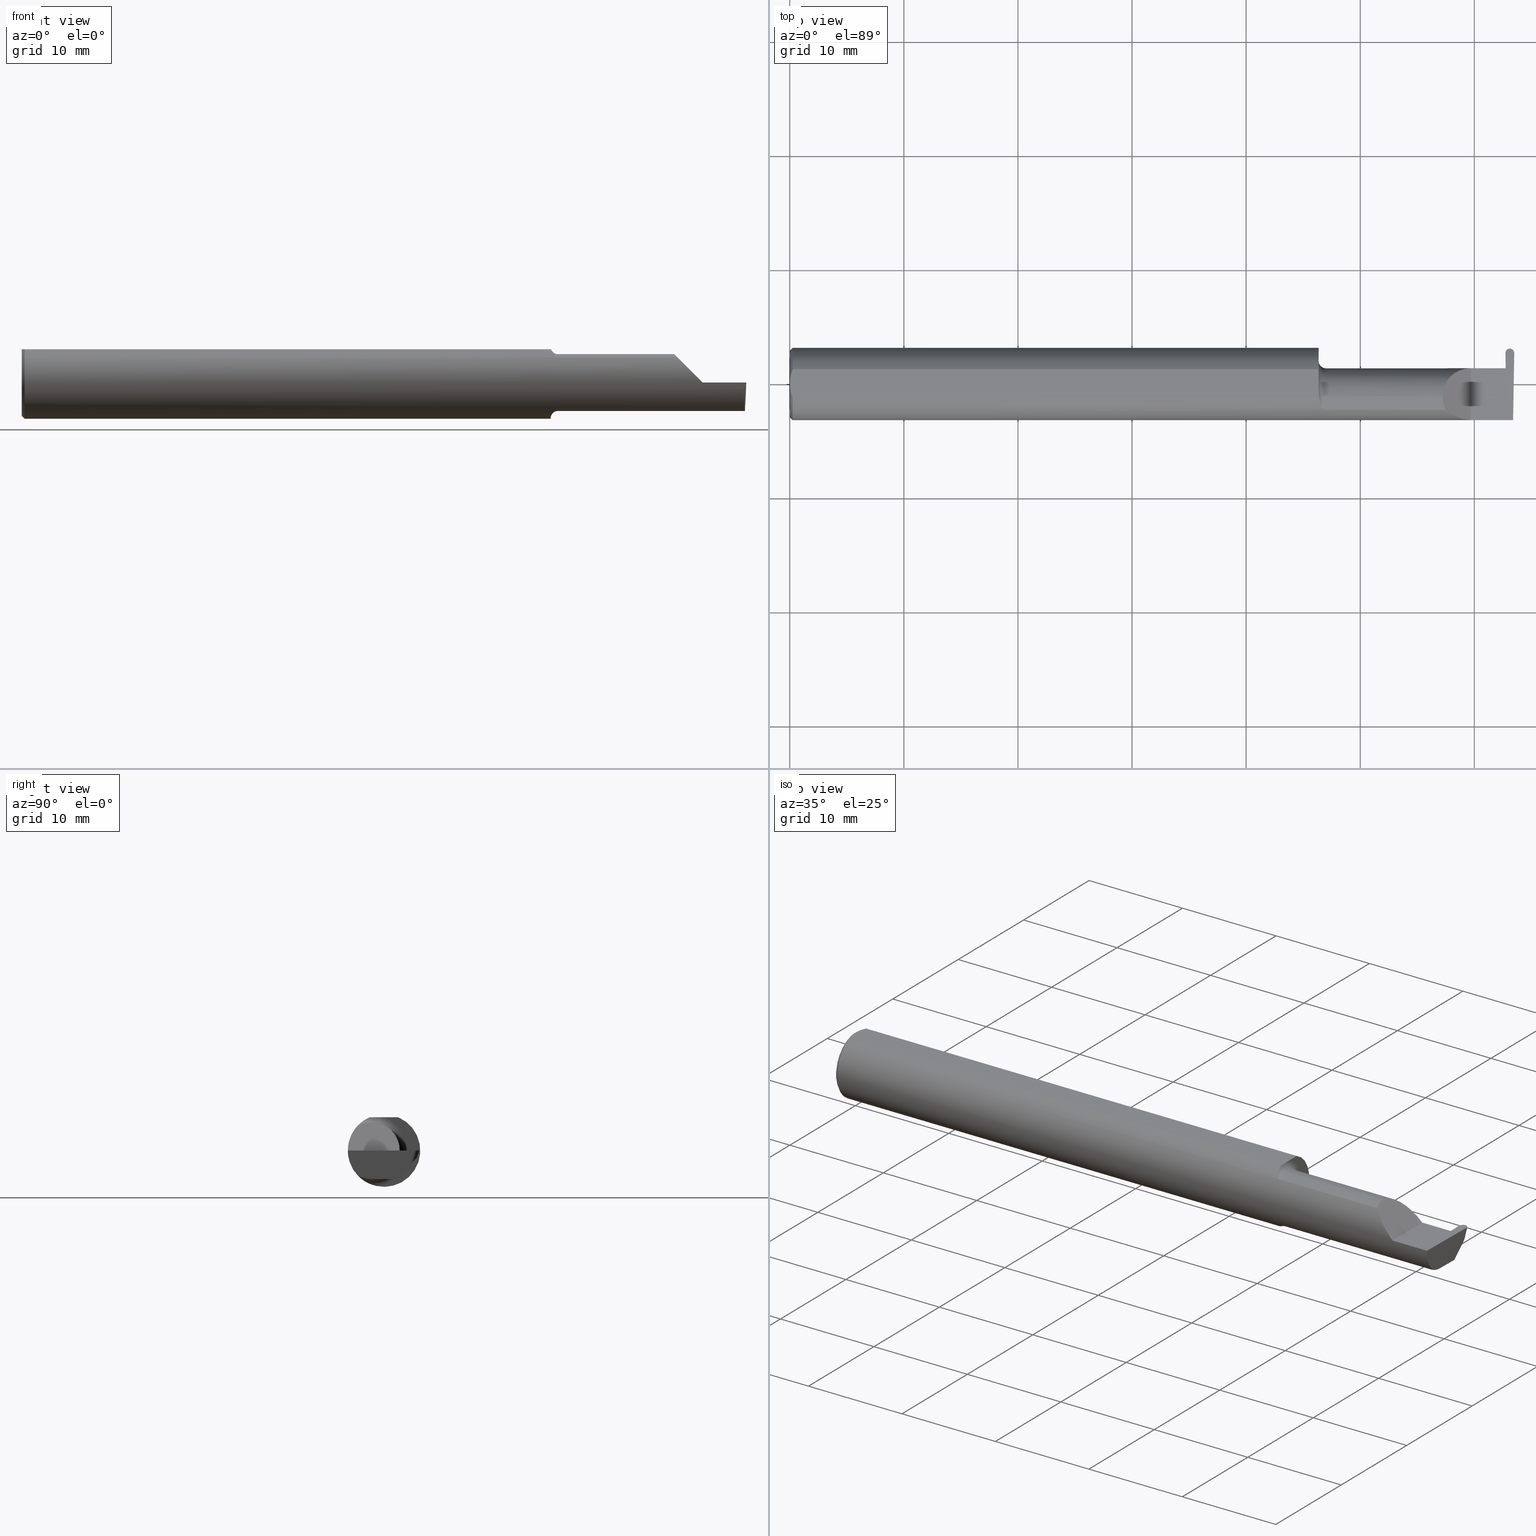
[diagram: canonical four-view strip — front | top / right | iso, engineering-drawing reading convention]
A machine part, canonical four-view strip (front | top / right | iso — engineering-drawing reading convention). The complete STEP part file that produces these views, byte-faithful:
ISO-10303-21;
HEADER;
FILE_DESCRIPTION (( 'STEP AP203' ),
    '1' );
FILE_NAME ('221933-GFR030Q-10.STEP',
    '2024-06-17T21:09:05',
    ( '' ),
    ( '' ),
    'SwSTEP 2.0',
    'SolidWorks 2022',
    '' );
FILE_SCHEMA (( 'CONFIG_CONTROL_DESIGN' ));
ENDSEC;

DATA;
#1 = CARTESIAN_POINT ( 'NONE',  ( 1.826314561435346207, -0.04400000000000004602, 0.1149999999999999217 ) ) ;
#2 = CARTESIAN_POINT ( 'NONE',  ( 2.471482284735846857, 0.08893015498921685857, -0.04880598229183141790 ) ) ;
#3 = VERTEX_POINT ( 'NONE', #697 ) ;
#4 = ORIENTED_EDGE ( 'NONE', *, *, #539, .F. ) ;
#5 = APPLICATION_PROTOCOL_DEFINITION ( 'international standard', 'config_control_design', 1994, #297 ) ;
#6 = CARTESIAN_POINT ( 'NONE',  ( 1.824999999999999956, -0.02763636363636371579, -0.1219066503721543404 ) ) ;
#7 = DIRECTION ( 'NONE',  ( -0.000000000000000000, 1.000000000000000000, 1.224646799147353207E-16 ) ) ;
#8 = CARTESIAN_POINT ( 'NONE',  ( 1.849999999999999867, -0.04400000000000004602, 0.1229999999999999705 ) ) ;
#9 = LINE ( 'NONE', #125, #815 ) ;
#10 = LINE ( 'NONE', #141, #678 ) ;
#11 = EDGE_CURVE ( 'NONE', #473, #56, #10, .T. ) ;
#12 = EDGE_CURVE ( 'NONE', #491, #769, #16, .T. ) ;
#13 = PERSON_AND_ORGANIZATION_ROLE ( 'creator' ) ;
#14 = B_SPLINE_CURVE_WITH_KNOTS ( 'NONE', 3,
 ( #580, #214, #271, #391, #577, #148 ),
 .UNSPECIFIED., .F., .F.,
 ( 4, 2, 4 ),
 ( 0.001061950514642623312, 0.001696734447512964709, 0.002331518380383306322 ),
 .UNSPECIFIED. ) ;
#15 = CARTESIAN_POINT ( 'NONE',  ( 0.000000000000000000, 0.000000000000000000, -0.1149999999999997274 ) ) ;
#16 = LINE ( 'NONE', #774, #663 ) ;
#17 = APPROVAL_STATUS ( 'not_yet_approved' ) ;
#18 = CARTESIAN_POINT ( 'NONE',  ( 0.01000000000000042348, 0.000000000000000000, 0.000000000000000000 ) ) ;
#19 = DIRECTION ( 'NONE',  ( -0.03701368837992469879, -0.7066222423871550973, -0.7066222423871629799 ) ) ;
#20 = DATE_AND_TIME ( #457, #86 ) ;
#21 = ADVANCED_FACE ( 'NONE', ( #127 ), #254, .F. ) ;
#22 = CARTESIAN_POINT ( 'NONE',  ( 1.849999999999999867, -0.04400000000000004602, 0.000000000000000000 ) ) ;
#23 = CARTESIAN_POINT ( 'NONE',  ( 2.469484345974817696, 0.1057354023860208880, 0.000000000000000000 ) ) ;
#24 = CARTESIAN_POINT ( 'NONE',  ( 2.263691591372603895, -0.09042045454545419303, 0.08630840862739529162 ) ) ;
#25 = DIRECTION ( 'NONE',  ( 0.000000000000000000, -0.9455185755993166241, 0.3255681544571570885 ) ) ;
#26 = APPROVAL_PERSON_ORGANIZATION ( #515, #616, #715 ) ;
#27 = FACE_OUTER_BOUND ( 'NONE', #494, .T. ) ;
#28 = CARTESIAN_POINT ( 'NONE',  ( 2.350000000000000089, -0.1250000000000000278, 1.836970198721028825E-17 ) ) ;
#29 = EDGE_LOOP ( 'NONE', ( #100, #293, #132 ) ) ;
#30 = LINE ( 'NONE', #706, #50 ) ;
#31 = PERSON_AND_ORGANIZATION ( #213, #451 ) ;
#32 = EDGE_CURVE ( 'NONE', #235, #686, #364, .T. ) ;
#33 = ADVANCED_FACE ( 'NONE', ( #145 ), #306, .T. ) ;
#34 = CARTESIAN_POINT ( 'NONE',  ( 2.464200446367434516, 0.05399999999999999245, 0.000000000000000000 ) ) ;
#35 = DIRECTION ( 'NONE',  ( -0.02596452850600435361, 0.7068683906002055650, 0.7068683906002134476 ) ) ;
#36 = ORIENTED_EDGE ( 'NONE', *, *, #135, .F. ) ;
#37 = ORIENTED_EDGE ( 'NONE', *, *, #252, .T. ) ;
#38 = LINE ( 'NONE', #286, #395 ) ;
#39 = LINE ( 'NONE', #417, #812 ) ;
#40 = VERTEX_POINT ( 'NONE', #447 ) ;
#41 = AXIS2_PLACEMENT_3D ( 'NONE', #444, #193, #124 ) ;
#42 = CARTESIAN_POINT ( 'NONE',  ( 1.849999999999999867, -0.04400000000000004602, 0.000000000000000000 ) ) ;
#43 = EDGE_CURVE ( 'NONE', #246, #414, #329, .T. ) ;
#44 = CARTESIAN_POINT ( 'NONE',  ( 1.825730677800976975, -0.04400000000000004602, -0.1169999999999999790 ) ) ;
#45 = ADVANCED_FACE ( 'NONE', ( #561 ), #557, .T. ) ;
#46 = VERTEX_POINT ( 'NONE', #199 ) ;
#47 = ORIENTED_EDGE ( 'NONE', *, *, #11, .F. ) ;
#48 = DIRECTION ( 'NONE',  ( 0.7071067811865530128, 0.000000000000000000, -0.7071067811865421326 ) ) ;
#49 = CARTESIAN_POINT ( 'NONE',  ( 1.849999999999999867, -0.04400000000000004602, 0.000000000000000000 ) ) ;
#50 = VECTOR ( 'NONE', #390, 39.37007874015748854 ) ;
#51 = ORIENTED_EDGE ( 'NONE', *, *, #218, .F. ) ;
#52 = CARTESIAN_POINT ( 'NONE',  ( 2.469471554992074935, 0.1064681972965584728, 0.000000000000000000 ) ) ;
#53 = ORIENTED_EDGE ( 'NONE', *, *, #709, .T. ) ;
#54 = DIRECTION ( 'NONE',  ( -1.000000000000000000, -0.000000000000000000, -0.000000000000000000 ) ) ;
#55 =( BOUNDED_CURVE ( )  B_SPLINE_CURVE ( 3, ( #552, #797, #407, #425 ),
 .UNSPECIFIED., .F., .F. ) 
 B_SPLINE_CURVE_WITH_KNOTS ( ( 4, 4 ),
 ( 6.171327673818511883, 7.747253380535275902 ),
 .UNSPECIFIED. ) 
 CURVE ( )  GEOMETRIC_REPRESENTATION_ITEM ( )  RATIONAL_B_SPLINE_CURVE ( ( 1.000000000000000000, 0.8035272986452609567, 0.8035272986452609567, 1.000000000000000000 ) ) 
 REPRESENTATION_ITEM ( '' )  );
#56 = VERTEX_POINT ( 'NONE', #441 ) ;
#57 = CARTESIAN_POINT ( 'NONE',  ( 1.826049928736321215, -0.02945016372790500853, 0.1149999999999999356 ) ) ;
#58 = DIRECTION ( 'NONE',  ( -1.000000000000000000, -0.000000000000000000, -0.000000000000000000 ) ) ;
#59 = ORIENTED_EDGE ( 'NONE', *, *, #466, .T. ) ;
#60 = ORIENTED_EDGE ( 'NONE', *, *, #526, .F. ) ;
#61 = CARTESIAN_POINT ( 'NONE',  ( 0.000000000000000000, 0.000000000000000000, 0.000000000000000000 ) ) ;
#62 = CARTESIAN_POINT ( 'NONE',  ( 2.500151011401777534, 0.1152528334169432289, -1.895304614445360883E-18 ) ) ;
#63 = DIRECTION ( 'NONE',  ( 0.000000000000000000, -0.9455185755993167351, 0.3255681544571566999 ) ) ;
#64 = CARTESIAN_POINT ( 'NONE',  ( 1.826314561435345762, -0.03672135622230197904, 0.1149999999999999356 ) ) ;
#65 = APPROVAL ( #325, 'UNSPECIFIED' ) ;
#66 = DIRECTION ( 'NONE',  ( 1.000000000000000000, 0.000000000000000000, 0.000000000000000000 ) ) ;
#67 = EDGE_CURVE ( 'NONE', #710, #612, #701, .T. ) ;
#68 = EDGE_LOOP ( 'NONE', ( #101, #604, #733 ) ) ;
#69 = ORIENTED_EDGE ( 'NONE', *, *, #12, .F. ) ;
#70 = EDGE_CURVE ( 'NONE', #40, #162, #263, .T. ) ;
#71 = DIRECTION ( 'NONE',  ( -1.000000000000000000, -0.000000000000000000, -0.000000000000000000 ) ) ;
#72 = VERTEX_POINT ( 'NONE', #495 ) ;
#73 = DIRECTION ( 'NONE',  ( -0.03867711768362944169, 0.3253245514560478835, 0.9448111011136608450 ) ) ;
#74 = VECTOR ( 'NONE', #311, 39.37007874015748143 ) ;
#75 = COORDINATED_UNIVERSAL_TIME_OFFSET ( 8, 0, .BEHIND. ) ;
#76 = CARTESIAN_POINT ( 'NONE',  ( 2.493546555653489705, -0.09042045454545441507, -0.08630840862739512509 ) ) ;
#77 = ORIENTED_EDGE ( 'NONE', *, *, #445, .T. ) ;
#78 = CARTESIAN_POINT ( 'NONE',  ( 2.350000000000000089, 0.05399999999999997163, 8.266365894244625705E-17 ) ) ;
#79 = CIRCLE ( 'NONE', #578, 0.02499999999999993894 ) ;
#80 = DIRECTION ( 'NONE',  ( 1.000000000000000000, -2.759690214555744741E-15, -0.000000000000000000 ) ) ;
#81 = CIRCLE ( 'NONE', #292, 0.09800000000000003153 ) ;
#82 = DIRECTION ( 'NONE',  ( 1.000000000000000000, 0.000000000000000000, 0.000000000000000000 ) ) ;
#83 = ORIENTED_EDGE ( 'NONE', *, *, #465, .T. ) ;
#84 = VECTOR ( 'NONE', #265, 39.37007874015748143 ) ;
#85 = CARTESIAN_POINT ( 'NONE',  ( 2.292592929112562405, 0.05399999999999997163, 0.05740707088743673275 ) ) ;
#86 = LOCAL_TIME ( 14, 9, 5.000000000000000000, #795 ) ;
#87 = PLANE ( 'NONE',  #154 ) ;
#88 = PLANE ( 'NONE',  #788 ) ;
#89 = EDGE_CURVE ( 'NONE', #429, #318, #205, .T. ) ;
#90 = DIRECTION ( 'NONE',  ( 0.000000000000000000, -0.3255681544571570885, -0.9455185755993166241 ) ) ;
#91 = ORIENTED_EDGE ( 'NONE', *, *, #478, .T. ) ;
#92 = EDGE_CURVE ( 'NONE', #473, #202, #324, .T. ) ;
#93 = CALENDAR_DATE ( 2024, 17, 6 ) ;
#94 = CARTESIAN_POINT ( 'NONE',  ( -3.937007874019685528E-05, 0.1219999999999999835, 0.000000000000000000 ) ) ;
#95 = CARTESIAN_POINT ( 'NONE',  ( 1.829267307214414329, -0.06631395538221114550, 0.1063681193389249130 ) ) ;
#96 = ORIENTED_EDGE ( 'NONE', *, *, #89, .F. ) ;
#97 = VECTOR ( 'NONE', #314, 39.37007874015748143 ) ;
#98 = CARTESIAN_POINT ( 'NONE',  ( 0.000000000000000000, 0.000000000000000000, -0.1149999999999997274 ) ) ;
#99 = DIRECTION ( 'NONE',  ( -1.000000000000000000, -0.000000000000000000, -0.000000000000000000 ) ) ;
#100 = ORIENTED_EDGE ( 'NONE', *, *, #268, .T. ) ;
#101 = ORIENTED_EDGE ( 'NONE', *, *, #300, .T. ) ;
#102 = CC_DESIGN_PERSON_AND_ORGANIZATION_ASSIGNMENT ( #775, #657, ( #782 ) ) ;
#103 = ADVANCED_FACE ( 'NONE', ( #720 ), #401, .F. ) ;
#104 = CARTESIAN_POINT ( 'NONE',  ( 0.003880275146595849479, 0.03337499979622342988, 0.1149999999999999217 ) ) ;
#105 = EDGE_CURVE ( 'NONE', #112, #358, #81, .T. ) ;
#106 = CARTESIAN_POINT ( 'NONE',  ( 1.847488493957805566, -0.09042045454585206921, 0.08630840862697858329 ) ) ;
#107 = ORIENTED_EDGE ( 'NONE', *, *, #320, .T. ) ;
#108 = ORIENTED_EDGE ( 'NONE', *, *, #122, .T. ) ;
#109 = CARTESIAN_POINT ( 'NONE',  ( 2.350000000000000089, -0.2500000000000000555, 1.836970198721028825E-17 ) ) ;
#110 =( BOUNDED_CURVE ( )  B_SPLINE_CURVE ( 3, ( #685, #121, #305, #811 ),
 .UNSPECIFIED., .F., .F. ) 
 B_SPLINE_CURVE_WITH_KNOTS ( ( 4, 4 ),
 ( 6.253187659403638854, 6.746650124384929725 ),
 .UNSPECIFIED. ) 
 CURVE ( )  GEOMETRIC_REPRESENTATION_ITEM ( )  RATIONAL_B_SPLINE_CURVE ( ( 1.000000000000000000, 0.9798106333074687591, 0.9798106333074687591, 1.000000000000000000 ) ) 
 REPRESENTATION_ITEM ( '' )  );
#111 = PLANE ( 'NONE',  #597 ) ;
#112 = VERTEX_POINT ( 'NONE', #270 ) ;
#113 = ORIENTED_EDGE ( 'NONE', *, *, #32, .F. ) ;
#114 = VECTOR ( 'NONE', #19, 39.37007874015748143 ) ;
#115 = AXIS2_PLACEMENT_3D ( 'NONE', #493, #753, #327 ) ;
#116 = CARTESIAN_POINT ( 'NONE',  ( 2.497986945264153213, 0.08893015498921681694, -0.04880598229183145953 ) ) ;
#117 = CARTESIAN_POINT ( 'NONE',  ( 0.000000000000000000, 3.414809992080329023E-17, 0.1149999999999999217 ) ) ;
#118 = ORIENTED_EDGE ( 'NONE', *, *, #252, .F. ) ;
#119 = CARTESIAN_POINT ( 'NONE',  ( 1.824999999999999734, -0.007643795319155096551, 0.1149999999999999356 ) ) ;
#120 = CC_DESIGN_DATE_AND_TIME_ASSIGNMENT ( #705, #210, ( #442 ) ) ;
#121 = CARTESIAN_POINT ( 'NONE',  ( 2.493527483980555903, -0.07607783494366274213, -0.09402249966297454575 ) ) ;
#122 = EDGE_CURVE ( 'NONE', #290, #40, #735, .T. ) ;
#123 = VECTOR ( 'NONE', #702, 39.37007874015748854 ) ;
#124 = DIRECTION ( 'NONE',  ( -0.7071067811865511255, 0.000000000000000000, 0.7071067811865439090 ) ) ;
#125 = CARTESIAN_POINT ( 'NONE',  ( 2.470387390782552650, 0.05399999999999997163, 4.732000043842599068E-21 ) ) ;
#126 = ORIENTED_EDGE ( 'NONE', *, *, #32, .T. ) ;
#127 = FACE_OUTER_BOUND ( 'NONE', #667, .T. ) ;
#128 = CARTESIAN_POINT ( 'NONE',  ( 1.824999999999999956, -0.04400000000000004602, 0.09800000000000003153 ) ) ;
#129 = CARTESIAN_POINT ( 'NONE',  ( 1.849999999999999867, -0.04400000000000004602, 0.09800000000000003153 ) ) ;
#130 =( BOUNDED_CURVE ( )  B_SPLINE_CURVE ( 3, ( #24, #143, #458, #273 ),
 .UNSPECIFIED., .F., .F. ) 
 B_SPLINE_CURVE_WITH_KNOTS ( ( 4, 4 ),
 ( 5.789722842198298025, 6.283185307179586232 ),
 .UNSPECIFIED. ) 
 CURVE ( )  GEOMETRIC_REPRESENTATION_ITEM ( )  RATIONAL_B_SPLINE_CURVE ( ( 1.000000000000000000, 0.9798106333074688701, 0.9798106333074688701, 1.000000000000000000 ) ) 
 REPRESENTATION_ITEM ( '' )  );
#131 = ORIENTED_EDGE ( 'NONE', *, *, #504, .T. ) ;
#132 = ORIENTED_EDGE ( 'NONE', *, *, #526, .T. ) ;
#133 = AXIS2_PLACEMENT_3D ( 'NONE', #427, #178, #353 ) ;
#134 = PRODUCT_RELATED_PRODUCT_CATEGORY ( 'detail', '', ( #289 ) ) ;
#135 = EDGE_CURVE ( 'NONE', #710, #408, #331, .T. ) ;
#136 = DIRECTION ( 'NONE',  ( 0.000000000000000000, 0.000000000000000000, -1.000000000000000000 ) ) ;
#137 = ORIENTED_EDGE ( 'NONE', *, *, #122, .F. ) ;
#138 = MANIFOLD_SOLID_BREP ( 'Radii', #514 ) ;
#139 = DIRECTION ( 'NONE',  ( 0.000000000000000000, 0.000000000000000000, -1.000000000000000000 ) ) ;
#140 = CARTESIAN_POINT ( 'NONE',  ( 1.824999999999999956, -0.04400000000000004602, 0.000000000000000000 ) ) ;
#141 = CARTESIAN_POINT ( 'NONE',  ( 2.499994123636400722, 0.1058131194589338464, 0.0002257067685350752845 ) ) ;
#142 = PERSON_AND_ORGANIZATION ( #213, #451 ) ;
#143 = CARTESIAN_POINT ( 'NONE',  ( 2.255977500337024377, -0.07607783494366260335, 0.09402249966297457351 ) ) ;
#144 = AXIS2_PLACEMENT_3D ( 'NONE', #563, #58, #568 ) ;
#145 = FACE_OUTER_BOUND ( 'NONE', #336, .T. ) ;
#146 = ADVANCED_BREP_SHAPE_REPRESENTATION ( '221933-GFR030Q-10', ( #138, #387 ), #489 ) ;
#147 = CARTESIAN_POINT ( 'NONE',  ( 3.749399456654637998E-32, -0.1249999999999999861, 3.061616997868380183E-16 ) ) ;
#148 = CARTESIAN_POINT ( 'NONE',  ( 0.000000000000000000, 3.414809992080329023E-17, 0.1149999999999999217 ) ) ;
#149 = EDGE_LOOP ( 'NONE', ( #4, #51, #253, #171 ) ) ;
#150 = CIRCLE ( 'NONE', #288, 0.09800000000000003153 ) ;
#151 = CARTESIAN_POINT ( 'NONE',  ( 2.470387390782552650, 0.05399999999999997163, 0.000000000000000000 ) ) ;
#152 = ORIENTED_EDGE ( 'NONE', *, *, #588, .T. ) ;
#153 = ORIENTED_EDGE ( 'NONE', *, *, #268, .F. ) ;
#154 = AXIS2_PLACEMENT_3D ( 'NONE', #518, #25, #90 ) ;
#155 = DIRECTION ( 'NONE',  ( 1.000000000000000000, 0.000000000000000000, 0.000000000000000000 ) ) ;
#156 = VECTOR ( 'NONE', #449, 39.37007874015748143 ) ;
#157 = ADVANCED_FACE ( 'NONE', ( #776 ), #644, .F. ) ;
#158 = CARTESIAN_POINT ( 'NONE',  ( 2.474180957929539737, -2.420508663812208638, -0.02047232740206453294 ) ) ;
#159 = LOCAL_TIME ( 14, 9, 5.000000000000000000, #388 ) ;
#160 = ADVANCED_FACE ( 'NONE', ( #589 ), #219, .T. ) ;
#161 = CARTESIAN_POINT ( 'NONE',  ( 0.000000000000000000, 0.000000000000000000, 0.000000000000000000 ) ) ;
#162 = VERTEX_POINT ( 'NONE', #222 ) ;
#163 = PERSON_AND_ORGANIZATION_ROLE ( 'creator' ) ;
#164 = CARTESIAN_POINT ( 'NONE',  ( 2.473987104431409012, -0.04400000000000004602, -0.09800000000000001765 ) ) ;
#165 = DIRECTION ( 'NONE',  ( 0.000000000000000000, -0.7071067811865514585, 0.7071067811865435759 ) ) ;
#166 = ORIENTED_EDGE ( 'NONE', *, *, #354, .T. ) ;
#167 = CARTESIAN_POINT ( 'NONE',  ( 1.824999999999999956, -0.04400000000000004602, 0.000000000000000000 ) ) ;
#168 = DIRECTION ( 'NONE',  ( -0.03867711768363032293, -0.3253245514560478280, -0.9448111011136606230 ) ) ;
#169 = AXIS2_PLACEMENT_3D ( 'NONE', #633, #73, #63 ) ;
#170 = ADVANCED_FACE ( 'NONE', ( #728 ), #646, .T. ) ;
#171 = ORIENTED_EDGE ( 'NONE', *, *, #481, .F. ) ;
#172 = VERTEX_POINT ( 'NONE', #23 ) ;
#173 = APPROVAL_ROLE ( '' ) ;
#174 = CARTESIAN_POINT ( 'NONE',  ( 2.498714643955449066, 0.1028225311217316196, -0.03491360615931652506 ) ) ;
#175 = LINE ( 'NONE', #52, #558 ) ;
#176 = ORIENTED_EDGE ( 'NONE', *, *, #92, .F. ) ;
#177 = VERTEX_POINT ( 'NONE', #456 ) ;
#178 = DIRECTION ( 'NONE',  ( 1.000000000000000000, 0.000000000000000000, 0.000000000000000000 ) ) ;
#179 = CARTESIAN_POINT ( 'NONE',  ( 1.825730677800976975, -0.04400000000000004602, -0.1169999999999999790 ) ) ;
#180 = ORIENTED_EDGE ( 'NONE', *, *, #754, .F. ) ;
#181 = VERTEX_POINT ( 'NONE', #787 ) ;
#182 = LINE ( 'NONE', #94, #582 ) ;
#183 = ORIENTED_EDGE ( 'NONE', *, *, #92, .T. ) ;
#184 =( LENGTH_UNIT ( ) NAMED_UNIT ( * ) SI_UNIT ( $, .METRE. ) );
#185 = EDGE_CURVE ( 'NONE', #177, #318, #14, .T. ) ;
#186 = CARTESIAN_POINT ( 'NONE',  ( 2.493546555653489705, -0.09042045454545441507, -0.08630840862739512509 ) ) ;
#187 = ORIENTED_EDGE ( 'NONE', *, *, #11, .T. ) ;
#188 = MECHANICAL_CONTEXT ( 'NONE', #297, 'mechanical' ) ;
#189 = CARTESIAN_POINT ( 'NONE',  ( 0.000000000000000000, -0.04898979485566374442, 0.1149999999999999217 ) ) ;
#190 = ORIENTED_EDGE ( 'NONE', *, *, #466, .F. ) ;
#191 = DIRECTION ( 'NONE',  ( -0.001239419280281402755, 0.9999992319196288060, 0.000000000000000000 ) ) ;
#192 = AXIS2_PLACEMENT_3D ( 'NONE', #615, #738, #806 ) ;
#193 = DIRECTION ( 'NONE',  ( -0.7071067811865439090, 0.000000000000000000, -0.7071067811865511255 ) ) ;
#194 = LINE ( 'NONE', #251, #84 ) ;
#195 = ORIENTED_EDGE ( 'NONE', *, *, #692, .F. ) ;
#196 = EDGE_CURVE ( 'NONE', #686, #181, #459, .T. ) ;
#197 = AXIS2_PLACEMENT_3D ( 'NONE', #524, #155, #463 ) ;
#198 = CARTESIAN_POINT ( 'NONE',  ( 1.824999999999999956, -0.03321131449419137405, -0.1206428032506770415 ) ) ;
#199 = CARTESIAN_POINT ( 'NONE',  ( 2.473470678212430052, 0.05097006188126716741, -0.08676607539978858918 ) ) ;
#200 = DIRECTION ( 'NONE',  ( 1.000000000000000000, -0.000000000000000000, -0.000000000000000000 ) ) ;
#201 = CARTESIAN_POINT ( 'NONE',  ( 1.824999999999999956, 0.1250000000000000278, 0.1149999999999999217 ) ) ;
#202 = VERTEX_POINT ( 'NONE', #393 ) ;
#203 = CARTESIAN_POINT ( 'NONE',  ( 1.824999999999999956, -0.0003651515414570668193, 0.1149999999999999217 ) ) ;
#204 = CARTESIAN_POINT ( 'NONE',  ( 0.000000000000000000, 0.04898979485566374442, 0.1149999999999999217 ) ) ;
#205 = CIRCLE ( 'NONE', #461, 0.1149999999999997274 ) ;
#206 = PERSON_AND_ORGANIZATION ( #213, #451 ) ;
#207 = LOCAL_TIME ( 14, 9, 5.000000000000000000, #228 ) ;
#208 = AXIS2_PLACEMENT_3D ( 'NONE', #807, #165, #793 ) ;
#209 = CARTESIAN_POINT ( 'NONE',  ( 2.473919830754201854, 0.01027834358092162559, -0.09800000000000004541 ) ) ;
#210 = DATE_TIME_ROLE ( 'creation_date' ) ;
#211 = DIRECTION ( 'NONE',  ( -1.000000000000000000, -0.000000000000000000, -0.000000000000000000 ) ) ;
#212 = CARTESIAN_POINT ( 'NONE',  ( 1.849999999999999867, -0.04400000000000004602, 0.000000000000000000 ) ) ;
#213 = PERSON ( 'UNSPECIFIED', 'UNSPECIFIED', 'UNSPECIFIED', ('UNSPECIFIED'), ('UNSPECIFIED'), ('UNSPECIFIED') ) ;
#214 = CARTESIAN_POINT ( 'NONE',  ( 0.006956794985978487743, -0.04122489957750442163, 0.1149999999999999356 ) ) ;
#215 = CC_DESIGN_PERSON_AND_ORGANIZATION_ASSIGNMENT ( #448, #13, ( #442 ) ) ;
#216 = ORIENTED_EDGE ( 'NONE', *, *, #443, .T. ) ;
#217 = ADVANCED_FACE ( 'NONE', ( #334 ), #87, .F. ) ;
#218 = EDGE_CURVE ( 'NONE', #450, #230, #281, .T. ) ;
#219 = CONICAL_SURFACE ( 'NONE', #695, 0.1149999999999997274, 0.7853981633974407295 ) ;
#220 = CARTESIAN_POINT ( 'NONE',  ( 2.470387390782552650, 0.05399999999999997163, 0.000000000000000000 ) ) ;
#221 = ORIENTED_EDGE ( 'NONE', *, *, #424, .F. ) ;
#222 = CARTESIAN_POINT ( 'NONE',  ( 0.01000000000000042348, 0.04898979485566374442, 0.1149999999999999217 ) ) ;
#223 = DATE_AND_TIME ( #579, #159 ) ;
#224 = DIRECTION ( 'NONE',  ( 0.000000000000000000, 0.000000000000000000, 1.000000000000000000 ) ) ;
#225 = CARTESIAN_POINT ( 'NONE',  ( 1.826195811990451112, -0.04900285419228611605, -0.1151185847482000674 ) ) ;
#226 = ORIENTED_EDGE ( 'NONE', *, *, #539, .T. ) ;
#227 = ORIENTED_EDGE ( 'NONE', *, *, #601, .T. ) ;
#228 = COORDINATED_UNIVERSAL_TIME_OFFSET ( 8, 0, .BEHIND. ) ;
#229 = CARTESIAN_POINT ( 'NONE',  ( 1.827426556614086817, -0.05801934803182792061, 0.1111534264545077366 ) ) ;
#230 = VERTEX_POINT ( 'NONE', #593 ) ;
#231 = CARTESIAN_POINT ( 'NONE',  ( 1.826314561435345762, -0.04483155449642588219, 0.1149999999999999356 ) ) ;
#232 = VECTOR ( 'NONE', #245, 39.37007874015748143 ) ;
#233 = CARTESIAN_POINT ( 'NONE',  ( 1.849999999999999867, -0.04400000000000004602, 0.000000000000000000 ) ) ;
#234 = ORIENTED_EDGE ( 'NONE', *, *, #443, .F. ) ;
#235 = VERTEX_POINT ( 'NONE', #275 ) ;
#236 = DIRECTION ( 'NONE',  ( -1.000000000000000000, -0.000000000000000000, -0.000000000000000000 ) ) ;
#237 = CARTESIAN_POINT ( 'NONE',  ( 2.672413070268786939, -0.04400000000000004602, -0.09800000000000001765 ) ) ;
#238 = ORIENTED_EDGE ( 'NONE', *, *, #719, .F. ) ;
#239 = EDGE_CURVE ( 'NONE', #460, #72, #421, .T. ) ;
#240 =( CONVERSION_BASED_UNIT ( 'INCH', #301 ) LENGTH_UNIT ( ) NAMED_UNIT ( #586 ) );
#241 = ADVANCED_FACE ( 'NONE', ( #467 ), #721, .F. ) ;
#242 = CARTESIAN_POINT ( 'NONE',  ( 1.826278290187167919, -0.04898979485482030799, 0.1149999999999999217 ) ) ;
#243 = ORIENTED_EDGE ( 'NONE', *, *, #105, .F. ) ;
#244 = LINE ( 'NONE', #257, #123 ) ;
#245 = DIRECTION ( 'NONE',  ( 1.000000000000000000, 0.000000000000000000, 0.000000000000000000 ) ) ;
#246 = VERTEX_POINT ( 'NONE', #44 ) ;
#247 = DIRECTION ( 'NONE',  ( -1.000000000000000000, -0.000000000000000000, -0.000000000000000000 ) ) ;
#248 = B_SPLINE_CURVE_WITH_KNOTS ( 'NONE', 3,
 ( #380, #64, #57, #767, #119, #506 ),
 .UNSPECIFIED., .F., .F.,
 ( 4, 2, 4 ),
 ( 0.009445492519198586678, 0.009997058688341184038, 0.01054862485748378140 ),
 .UNSPECIFIED. ) ;
#249 = FACE_OUTER_BOUND ( 'NONE', #149, .T. ) ;
#250 = CC_DESIGN_PERSON_AND_ORGANIZATION_ASSIGNMENT ( #267, #163, ( #782 ) ) ;
#251 = CARTESIAN_POINT ( 'NONE',  ( 1.824999999999999956, 0.05399999999999997163, 8.266365894244625705E-17 ) ) ;
#252 = EDGE_CURVE ( 'NONE', #612, #46, #603, .T. ) ;
#253 = ORIENTED_EDGE ( 'NONE', *, *, #692, .T. ) ;
#254 = PLANE ( 'NONE',  #280 ) ;
#255 = EDGE_CURVE ( 'NONE', #769, #172, #55, .T. ) ;
#256 = AXIS2_PLACEMENT_3D ( 'NONE', #367, #629, #623 ) ;
#257 = CARTESIAN_POINT ( 'NONE',  ( 2.499997675007925135, 0.1064681972965584866, 0.000000000000000000 ) ) ;
#258 = CARTESIAN_POINT ( 'NONE',  ( 2.484734615000000257, 0.1184314427645575679, -0.01036384274078069358 ) ) ;
#259 = DIRECTION ( 'NONE',  ( 0.000000000000000000, 0.000000000000000000, 1.000000000000000000 ) ) ;
#260 = CARTESIAN_POINT ( 'NONE',  ( 0.01000000000000042348, 0.000000000000000000, 0.000000000000000000 ) ) ;
#261 = FACE_OUTER_BOUND ( 'NONE', #319, .T. ) ;
#262 = ORIENTED_EDGE ( 'NONE', *, *, #409, .F. ) ;
#263 = LINE ( 'NONE', #204, #624 ) ;
#264 = PERSON_AND_ORGANIZATION ( #213, #451 ) ;
#265 = DIRECTION ( 'NONE',  ( 1.000000000000000000, 0.000000000000000000, 0.000000000000000000 ) ) ;
#266 = EDGE_LOOP ( 'NONE', ( #216, #541, #600, #107 ) ) ;
#267 = PERSON_AND_ORGANIZATION ( #213, #451 ) ;
#268 = EDGE_CURVE ( 'NONE', #339, #246, #488, .T. ) ;
#269 = DIRECTION ( 'NONE',  ( 1.000000000000000000, 0.000000000000000000, 0.000000000000000000 ) ) ;
#270 = CARTESIAN_POINT ( 'NONE',  ( 1.849999999999999867, -0.09042045454545430405, 0.08630840862739518060 ) ) ;
#271 = CARTESIAN_POINT ( 'NONE',  ( 0.004414142251465132810, -0.03315347577847933824, 0.1149999999999999356 ) ) ;
#272 = CC_DESIGN_PERSON_AND_ORGANIZATION_ASSIGNMENT ( #206, #642, ( #289 ) ) ;
#273 = CARTESIAN_POINT ( 'NONE',  ( 2.251999999999998892, -0.04400000000000004602, 0.09800000000000003153 ) ) ;
#274 = ADVANCED_FACE ( 'NONE', ( #675 ), #111, .F. ) ;
#275 = CARTESIAN_POINT ( 'NONE',  ( 2.463961723292897421, 0.05376127692546276565, -0.006836134426924275233 ) ) ;
#276 = ADVANCED_FACE ( 'NONE', ( #471 ), #711, .F. ) ;
#277 = CYLINDRICAL_SURFACE ( 'NONE', #766, 0.1250000000000000000 ) ;
#278 = CARTESIAN_POINT ( 'NONE',  ( 2.470630317148074795, 0.05376127692546955883, -0.006836134426924434827 ) ) ;
#279 = CARTESIAN_POINT ( 'NONE',  ( 2.493303259308029318, 0.1129364828361203443, -0.02479965444492767193 ) ) ;
#280 = AXIS2_PLACEMENT_3D ( 'NONE', #638, #373, #508 ) ;
#281 =( BOUNDED_CURVE ( )  B_SPLINE_CURVE ( 3, ( #28, #724, #403, #338 ),
 .UNSPECIFIED., .F., .F. ) 
 B_SPLINE_CURVE_WITH_KNOTS ( ( 4, 4 ),
 ( 4.712388980384689674, 5.474523801125208422 ),
 .UNSPECIFIED. ) 
 CURVE ( )  GEOMETRIC_REPRESENTATION_ITEM ( )  RATIONAL_B_SPLINE_CURVE ( ( 1.000000000000000000, 0.9521787881681380572, 0.9521787881681380572, 1.000000000000000000 ) ) 
 REPRESENTATION_ITEM ( '' )  );
#282 = CARTESIAN_POINT ( 'NONE',  ( 2.499997675007925135, 0.1064681972965584866, 0.000000000000000000 ) ) ;
#283 = SECURITY_CLASSIFICATION ( '', '', #771 ) ;
#284 = DIRECTION ( 'NONE',  ( 0.000000000000000000, 0.000000000000000000, 1.000000000000000000 ) ) ;
#285 = ORIENTED_EDGE ( 'NONE', *, *, #70, .T. ) ;
#286 = CARTESIAN_POINT ( 'NONE',  ( 1.824999999999999956, -0.04400000000000003908, -0.09800000000000003153 ) ) ;
#287 = PLANE ( 'NONE',  #208 ) ;
#288 = AXIS2_PLACEMENT_3D ( 'NONE', #529, #236, #679 ) ;
#289 = PRODUCT ( '221933-GFR030Q-10', '221933-GFR030Q-10', '', ( #188 ) ) ;
#290 = VERTEX_POINT ( 'NONE', #296 ) ;
#291 = CARTESIAN_POINT ( 'NONE',  ( 1.839282510427138639, -0.08510692115743009878, -0.09158169095606859267 ) ) ;
#292 = AXIS2_PLACEMENT_3D ( 'NONE', #212, #513, #530 ) ;
#293 = ORIENTED_EDGE ( 'NONE', *, *, #43, .T. ) ;
#294 = ORIENTED_EDGE ( 'NONE', *, *, #196, .T. ) ;
#295 = FACE_OUTER_BOUND ( 'NONE', #671, .T. ) ;
#296 = CARTESIAN_POINT ( 'NONE',  ( 1.824999999999999956, -0.02763636363636371579, -0.1219066503721543404 ) ) ;
#297 = APPLICATION_CONTEXT ( 'configuration controlled 3d designs of mechanical parts and assemblies' ) ;
#298 = EDGE_CURVE ( 'NONE', #708, #112, #379, .T. ) ;
#299 = ORIENTED_EDGE ( 'NONE', *, *, #805, .F. ) ;
#300 = EDGE_CURVE ( 'NONE', #751, #491, #39, .T. ) ;
#301 = LENGTH_MEASURE_WITH_UNIT ( LENGTH_MEASURE( 0.02539999999999999897 ), #184 );
#302 = DIRECTION ( 'NONE',  ( -1.000000000000000000, -0.000000000000000000, -0.000000000000000000 ) ) ;
#303 = ORIENTED_EDGE ( 'NONE', *, *, #691, .F. ) ;
#304 = DIRECTION ( 'NONE',  ( 0.000000000000000000, -1.000000000000000000, 0.000000000000000000 ) ) ;
#305 = CARTESIAN_POINT ( 'NONE',  ( 2.493664221452986052, -0.06028551311893198816, -0.09800000000000003153 ) ) ;
#306 = CYLINDRICAL_SURFACE ( 'NONE', #169, 0.01529999999999999763 ) ;
#307 = ADVANCED_FACE ( 'NONE', ( #681 ), #287, .F. ) ;
#308 =( NAMED_UNIT ( * ) PLANE_ANGLE_UNIT ( ) SI_UNIT ( $, .RADIAN. ) );
#309 = DIRECTION ( 'NONE',  ( -0.03867711768362942781, 0.3253245514560478280, 0.9448111011136606230 ) ) ;
#310 = DIRECTION ( 'NONE',  ( 0.000000000000000000, 0.000000000000000000, 1.000000000000000000 ) ) ;
#311 = DIRECTION ( 'NONE',  ( 1.000000000000000000, 0.000000000000000000, 0.000000000000000000 ) ) ;
#312 = CARTESIAN_POINT ( 'NONE',  ( 1.849999999999999867, -0.04400000000000003214, -0.1229999999999999705 ) ) ;
#313 = DIRECTION ( 'NONE',  ( -1.000000000000000000, -0.000000000000000000, -0.000000000000000000 ) ) ;
#314 = DIRECTION ( 'NONE',  ( 0.000000000000000000, 1.000000000000000000, 0.000000000000000000 ) ) ;
#315 = ORIENTED_EDGE ( 'NONE', *, *, #386, .F. ) ;
#316 = VECTOR ( 'NONE', #332, 39.37007874015748143 ) ;
#317 = CARTESIAN_POINT ( 'NONE',  ( 2.484734615000000257, 0.1160674915816100883, -0.01720563969772919213 ) ) ;
#318 = VERTEX_POINT ( 'NONE', #117 ) ;
#319 = EDGE_LOOP ( 'NONE', ( #226, #535, #243, #647 ) ) ;
#320 = EDGE_CURVE ( 'NONE', #202, #3, #361, .T. ) ;
#321 = EDGE_CURVE ( 'NONE', #181, #172, #175, .T. ) ;
#322 = APPROVAL_ROLE ( '' ) ;
#323 = LINE ( 'NONE', #147, #316 ) ;
#324 = LINE ( 'NONE', #328, #114 ) ;
#325 = APPROVAL_STATUS ( 'not_yet_approved' ) ;
#326 = AXIS2_PLACEMENT_3D ( 'NONE', #260, #559, #139 ) ;
#327 = DIRECTION ( 'NONE',  ( 0.000000000000000000, 0.000000000000000000, -1.000000000000000000 ) ) ;
#328 = CARTESIAN_POINT ( 'NONE',  ( 2.495862202245279438, 0.04836703517574777317, -0.08936910210530095433 ) ) ;
#329 = CIRCLE ( 'NONE', #398, 0.02499999999999993894 ) ;
#330 = EDGE_CURVE ( 'NONE', #546, #40, #507, .T. ) ;
#331 =( BOUNDED_CURVE ( )  B_SPLINE_CURVE ( 3, ( #584, #209, #790, #278 ),
 .UNSPECIFIED., .F., .T. ) 
 B_SPLINE_CURVE_WITH_KNOTS ( ( 4, 4 ),
 ( 3.176499238629679756, 4.677482395344806143 ),
 .UNSPECIFIED. ) 
 CURVE ( )  GEOMETRIC_REPRESENTATION_ITEM ( )  RATIONAL_B_SPLINE_CURVE ( ( 1.000000000000000000, 0.8209024677461128627, 0.8209024677461128627, 1.000000000000000000 ) ) 
 REPRESENTATION_ITEM ( '' )  );
#332 = DIRECTION ( 'NONE',  ( -1.000000000000000000, -0.000000000000000000, -0.000000000000000000 ) ) ;
#333 = EDGE_CURVE ( 'NONE', #56, #751, #673, .T. ) ;
#334 = FACE_OUTER_BOUND ( 'NONE', #68, .T. ) ;
#335 = CARTESIAN_POINT ( 'NONE',  ( 2.476165970691971197, 0.1129364828361193035, -0.02479965444492872664 ) ) ;
#336 = EDGE_LOOP ( 'NONE', ( #569, #384, #480, #69, #683 ) ) ;
#337 = LINE ( 'NONE', #592, #156 ) ;
#338 = CARTESIAN_POINT ( 'NONE',  ( 2.263691591372603895, -0.09042045454545419303, 0.08630840862739529162 ) ) ;
#339 = VERTEX_POINT ( 'NONE', #446 ) ;
#340 = COORDINATED_UNIVERSAL_TIME_OFFSET ( 8, 0, .BEHIND. ) ;
#341 = CYLINDRICAL_SURFACE ( 'NONE', #192, 0.01529999999999999763 ) ;
#342 = CARTESIAN_POINT ( 'NONE',  ( 1.828809610961340759, -0.06315583524588906650, -0.1079992965090798979 ) ) ;
#343 = AXIS2_PLACEMENT_3D ( 'NONE', #49, #99, #284 ) ;
#344 = ORIENTED_EDGE ( 'NONE', *, *, #680, .F. ) ;
#345 = AXIS2_PLACEMENT_3D ( 'NONE', #572, #66, #136 ) ;
#346 = LINE ( 'NONE', #674, #469 ) ;
#347 = CARTESIAN_POINT ( 'NONE',  ( 1.847250989814109179, -0.09042045454545442895, -0.08630840862739511121 ) ) ;
#348 = ORIENTED_EDGE ( 'NONE', *, *, #330, .T. ) ;
#349 = ORIENTED_EDGE ( 'NONE', *, *, #67, .F. ) ;
#350 = FACE_OUTER_BOUND ( 'NONE', #415, .T. ) ;
#351 = CARTESIAN_POINT ( 'NONE',  ( 1.849999999999999867, -0.09042045454545430405, 0.08630840862739518060 ) ) ;
#352 = EDGE_LOOP ( 'NONE', ( #750, #437, #118, #349 ) ) ;
#353 = DIRECTION ( 'NONE',  ( 0.000000000000000000, 0.000000000000000000, -1.000000000000000000 ) ) ;
#354 = EDGE_CURVE ( 'NONE', #546, #290, #665, .T. ) ;
#355 = DIRECTION ( 'NONE',  ( 1.000000000000000000, 0.000000000000000000, -0.000000000000000000 ) ) ;
#356 = AXIS2_PLACEMENT_3D ( 'NONE', #233, #302, #660 ) ;
#357 = EDGE_CURVE ( 'NONE', #112, #230, #749, .T. ) ;
#358 = VERTEX_POINT ( 'NONE', #129 ) ;
#359 = ORIENTED_EDGE ( 'NONE', *, *, #218, .T. ) ;
#360 = CYLINDRICAL_SURFACE ( 'NONE', #639, 0.09800000000000003153 ) ;
#361 = LINE ( 'NONE', #617, #453 ) ;
#362 = VERTEX_POINT ( 'NONE', #2 ) ;
#363 = CARTESIAN_POINT ( 'NONE',  ( 2.499984884025182375, 0.1057354023860208464, 0.000000000000000000 ) ) ;
#364 = B_SPLINE_CURVE_WITH_KNOTS ( 'NONE', 3,
 ( #765, #571, #760, #565 ),
 .UNSPECIFIED., .F., .F.,
 ( 4, 4 ),
 ( 0.000000000000000000, 1.000000000000000000 ),
 .UNSPECIFIED. ) ;
#365 = ORIENTED_EDGE ( 'NONE', *, *, #424, .T. ) ;
#366 = VECTOR ( 'NONE', #313, 39.37007874015748143 ) ;
#367 = CARTESIAN_POINT ( 'NONE',  ( 2.753179778023443269, 0.1250000000000000278, 0.1149999999999999217 ) ) ;
#368 = CARTESIAN_POINT ( 'NONE',  ( 2.493884351284315848, 0.1219999999999998030, -1.127860089025957857E-18 ) ) ;
#369 = AXIS2_PLACEMENT_3D ( 'NONE', #220, #522, #779 ) ;
#370 = CARTESIAN_POINT ( 'NONE',  ( 1.824999999999999956, -0.04400000000000004602, 0.000000000000000000 ) ) ;
#371 = LINE ( 'NONE', #440, #545 ) ;
#372 = ORIENTED_EDGE ( 'NONE', *, *, #239, .T. ) ;
#373 = DIRECTION ( 'NONE',  ( 0.9992386149554827179, 0.01744177490282073500, 0.03489949670250104552 ) ) ;
#374 = DIRECTION ( 'NONE',  ( 0.000000000000000000, 0.000000000000000000, -1.000000000000000000 ) ) ;
#375 = LOCAL_TIME ( 14, 9, 5.000000000000000000, #75 ) ;
#376 = DIRECTION ( 'NONE',  ( -1.000000000000000000, -0.000000000000000000, -0.000000000000000000 ) ) ;
#377 = EDGE_LOOP ( 'NONE', ( #221, #394, #126, #294 ) ) ;
#378 = DIRECTION ( 'NONE',  ( 0.03867711768363032293, 0.3253245514560478280, 0.9448111011136606230 ) ) ;
#379 = B_SPLINE_CURVE_WITH_KNOTS ( 'NONE', 3,
 ( #242, #229, #95, #549, #476, #736, #533, #490, #106, #351 ),
 .UNSPECIFIED., .F., .F.,
 ( 4, 2, 2, 2, 4 ),
 ( 5.067393806483457764E-07, 0.0007430328995834972359, 0.001114295979684921251, 0.001299927519735632553, 0.001485559059786344289 ),
 .UNSPECIFIED. ) ;
#380 = CARTESIAN_POINT ( 'NONE',  ( 1.826314561435346207, -0.04400000000000004602, 0.1149999999999999217 ) ) ;
#381 = CC_DESIGN_DATE_AND_TIME_ASSIGNMENT ( #452, #712, ( #283 ) ) ;
#382 = DIRECTION ( 'NONE',  ( 0.000000000000000000, 0.000000000000000000, 1.000000000000000000 ) ) ;
#383 = EDGE_CURVE ( 'NONE', #246, #290, #439, .T. ) ;
#384 = ORIENTED_EDGE ( 'NONE', *, *, #682, .F. ) ;
#385 = ORIENTED_EDGE ( 'NONE', *, *, #300, .F. ) ;
#386 = EDGE_CURVE ( 'NONE', #408, #235, #371, .T. ) ;
#387 = AXIS2_PLACEMENT_3D ( 'NONE', #61, #310, #562 ) ;
#388 = COORDINATED_UNIVERSAL_TIME_OFFSET ( 8, 0, .BEHIND. ) ;
#389 = CIRCLE ( 'NONE', #613, 0.1250000000000000000 ) ;
#390 = DIRECTION ( 'NONE',  ( -0.03701368837992277672, 0.7066222423871550973, 0.7066222423871629799 ) ) ;
#391 = CARTESIAN_POINT ( 'NONE',  ( 0.0009328476361608245343, -0.01672844127736827086, 0.1149999999999999217 ) ) ;
#392 = CARTESIAN_POINT ( 'NONE',  ( 2.500000000000000000, -0.2500000000000000555, 0.000000000000000000 ) ) ;
#393 = CARTESIAN_POINT ( 'NONE',  ( 2.495410105854944049, 0.03973613728104880005, -0.09800000000000001765 ) ) ;
#394 = ORIENTED_EDGE ( 'NONE', *, *, #386, .T. ) ;
#395 = VECTOR ( 'NONE', #684, 39.37007874015748143 ) ;
#396 = FACE_OUTER_BOUND ( 'NONE', #804, .T. ) ;
#397 = DIRECTION ( 'NONE',  ( -1.000000000000000000, -0.000000000000000000, -0.000000000000000000 ) ) ;
#398 = AXIS2_PLACEMENT_3D ( 'NONE', #312, #7, #259 ) ;
#399 = CARTESIAN_POINT ( 'NONE',  ( 2.251999999999998892, -0.04400000000000004602, 0.09800000000000003153 ) ) ;
#400 = CIRCLE ( 'NONE', #800, 0.09800000000000003153 ) ;
#401 = PLANE ( 'NONE',  #369 ) ;
#402 = DIRECTION ( 'NONE',  ( 0.9993699743034455407, 0.001238639365660604372, 0.03546999060124687853 ) ) ;
#403 = CARTESIAN_POINT ( 'NONE',  ( 2.287236475649208511, -0.1128945894460737787, 0.06276352435079125824 ) ) ;
#404 = ORIENTED_EDGE ( 'NONE', *, *, #620, .T. ) ;
#405 = PERSON_AND_ORGANIZATION_ROLE ( 'classification_officer' ) ;
#406 = PLANE ( 'NONE',  #133 ) ;
#407 = CARTESIAN_POINT ( 'NONE',  ( 2.469318218598223869, 0.1152528334169432428, 1.895304614445361269E-18 ) ) ;
#408 = VERTEX_POINT ( 'NONE', #696 ) ;
#409 = EDGE_CURVE ( 'NONE', #491, #810, #763, .T. ) ;
#410 = APPROVAL_DATE_TIME ( #474, #525 ) ;
#411 = APPROVAL_PERSON_ORGANIZATION ( #31, #525, #322 ) ;
#412 = CARTESIAN_POINT ( 'NONE',  ( 1.826299368641400855, -0.04732662288241423765, 0.1149999999999999356 ) ) ;
#413 = CARTESIAN_POINT ( 'NONE',  ( 2.493976598891079810, -0.1128945894460738203, -0.06276352435079111947 ) ) ;
#414 = VERTEX_POINT ( 'NONE', #500 ) ;
#415 = EDGE_LOOP ( 'NONE', ( #483, #303, #791, #472 ) ) ;
#416 = CARTESIAN_POINT ( 'NONE',  ( 2.484734615000000257, 0.1136989410075409934, -0.02403719627350702631 ) ) ;
#417 = CARTESIAN_POINT ( 'NONE',  ( 2.481161349538949068, 0.09073323165395930090, -0.09080528874034131392 ) ) ;
#418 = ORIENTED_EDGE ( 'NONE', *, *, #185, .F. ) ;
#419 = ORIENTED_EDGE ( 'NONE', *, *, #196, .F. ) ;
#420 = CC_DESIGN_PERSON_AND_ORGANIZATION_ASSIGNMENT ( #264, #405, ( #283 ) ) ;
#421 =( BOUNDED_CURVE ( )  B_SPLINE_CURVE ( 3, ( #76, #413, #486, #670 ),
 .UNSPECIFIED., .F., .T. ) 
 B_SPLINE_CURVE_WITH_KNOTS ( ( 4, 4 ),
 ( 0.3451966888490367591, 1.107331509589553287 ),
 .UNSPECIFIED. ) 
 CURVE ( )  GEOMETRIC_REPRESENTATION_ITEM ( )  RATIONAL_B_SPLINE_CURVE ( ( 1.000000000000000000, 0.9521787881681383903, 0.9521787881681383903, 1.000000000000000000 ) ) 
 REPRESENTATION_ITEM ( '' )  );
#422 = ADVANCED_FACE ( 'NONE', ( #762 ), #700, .T. ) ;
#423 = CARTESIAN_POINT ( 'NONE',  ( 2.473883320168691835, 0.03973613728104883475, -0.09800000000000000377 ) ) ;
#424 = EDGE_CURVE ( 'NONE', #408, #181, #9, .T. ) ;
#425 = CARTESIAN_POINT ( 'NONE',  ( 2.469484345974817696, 0.1057354023860208880, 0.000000000000000000 ) ) ;
#426 = ORIENTED_EDGE ( 'NONE', *, *, #185, .T. ) ;
#427 = CARTESIAN_POINT ( 'NONE',  ( 0.000000000000000000, 0.000000000000000000, 0.000000000000000000 ) ) ;
#428 = DIRECTION ( 'NONE',  ( 0.000000000000000000, 0.000000000000000000, 1.000000000000000000 ) ) ;
#429 = VERTEX_POINT ( 'NONE', #15 ) ;
#430 = PLANE ( 'NONE',  #41 ) ;
#431 = CARTESIAN_POINT ( 'NONE',  ( 2.484734615000000257, 0.1136989410075409934, -0.02403719627350702631 ) ) ;
#432 = ORIENTED_EDGE ( 'NONE', *, *, #718, .T. ) ;
#433 = CARTESIAN_POINT ( 'NONE',  ( 1.825730677800976975, -0.04400000000000004602, -0.1169999999999999790 ) ) ;
#434 = ORIENTED_EDGE ( 'NONE', *, *, #719, .T. ) ;
#435 = VECTOR ( 'NONE', #727, 39.37007874015748143 ) ;
#436 = LINE ( 'NONE', #189, #232 ) ;
#437 = ORIENTED_EDGE ( 'NONE', *, *, #709, .F. ) ;
#438 = FACE_OUTER_BOUND ( 'NONE', #574, .T. ) ;
#439 = B_SPLINE_CURVE_WITH_KNOTS ( 'NONE', 3,
 ( #433, #688, #198, #6 ),
 .UNSPECIFIED., .F., .F.,
 ( 4, 4 ),
 ( 0.001645996930207818589, 0.002084692492981599955 ),
 .UNSPECIFIED. ) ;
#440 = CARTESIAN_POINT ( 'NONE',  ( 1.825000000000000400, 0.05376127692546629755, -0.006836134426874000344 ) ) ;
#441 = CARTESIAN_POINT ( 'NONE',  ( 2.499984884025182375, 0.1057354023860208464, 0.000000000000000000 ) ) ;
#442 = PRODUCT_DEFINITION ( 'UNKNOWN', '', #782, #651 ) ;
#443 = EDGE_CURVE ( 'NONE', #3, #710, #560, .T. ) ;
#444 = CARTESIAN_POINT ( 'NONE',  ( 2.350000000000000089, -0.2500000000000000555, 1.836970198721028825E-17 ) ) ;
#445 = EDGE_CURVE ( 'NONE', #542, #686, #194, .T. ) ;
#446 = CARTESIAN_POINT ( 'NONE',  ( 1.849999999999999867, -0.09042045454545437344, -0.08630840862739513897 ) ) ;
#447 = CARTESIAN_POINT ( 'NONE',  ( 1.824999999999999956, 0.04898979485566374442, 0.1149999999999999217 ) ) ;
#448 = PERSON_AND_ORGANIZATION ( #213, #451 ) ;
#449 = DIRECTION ( 'NONE',  ( -1.000000000000000000, -0.000000000000000000, -0.000000000000000000 ) ) ;
#450 = VERTEX_POINT ( 'NONE', #631 ) ;
#451 = ORGANIZATION ( 'UNSPECIFIED', 'UNSPECIFIED', '' ) ;
#452 = DATE_AND_TIME ( #93, #778 ) ;
#453 = VECTOR ( 'NONE', #732, 39.37007874015748143 ) ;
#454 = DIRECTION ( 'NONE',  ( 0.000000000000000000, 0.000000000000000000, 1.000000000000000000 ) ) ;
#455 = ADVANCED_FACE ( 'NONE', ( #261 ), #496, .T. ) ;
#456 = CARTESIAN_POINT ( 'NONE',  ( 0.01000000000000042348, -0.04898979485566374442, 0.1149999999999999217 ) ) ;
#457 = CALENDAR_DATE ( 2024, 17, 6 ) ;
#458 = CARTESIAN_POINT ( 'NONE',  ( 2.251999999999998892, -0.06028551311893192571, 0.09800000000000003153 ) ) ;
#459 = LINE ( 'NONE', #151, #799 ) ;
#460 = VERTEX_POINT ( 'NONE', #186 ) ;
#461 = AXIS2_PLACEMENT_3D ( 'NONE', #756, #397, #640 ) ;
#462 = DIRECTION ( 'NONE',  ( -1.000000000000000000, -0.000000000000000000, -0.000000000000000000 ) ) ;
#463 = DIRECTION ( 'NONE',  ( 0.000000000000000000, 0.000000000000000000, -1.000000000000000000 ) ) ;
#464 = APPROVAL_PERSON_ORGANIZATION ( #142, #65, #173 ) ;
#465 = EDGE_CURVE ( 'NONE', #460, #3, #110, .T. ) ;
#466 = EDGE_CURVE ( 'NONE', #177, #708, #436, .T. ) ;
#467 = FACE_OUTER_BOUND ( 'NONE', #609, .T. ) ;
#468 = ORIENTED_EDGE ( 'NONE', *, *, #803, .T. ) ;
#469 = VECTOR ( 'NONE', #475, 39.37007874015748854 ) ;
#470 = CARTESIAN_POINT ( 'NONE',  ( 1.826278290187167919, -0.04898979485482030799, 0.1149999999999999217 ) ) ;
#471 = FACE_OUTER_BOUND ( 'NONE', #29, .T. ) ;
#472 = ORIENTED_EDGE ( 'NONE', *, *, #105, .T. ) ;
#473 = VERTEX_POINT ( 'NONE', #637 ) ;
#474 = DATE_AND_TIME ( #777, #207 ) ;
#475 = DIRECTION ( 'NONE',  ( 0.03867711768362943475, -0.3253245514560478835, -0.9448111011136606230 ) ) ;
#476 = CARTESIAN_POINT ( 'NONE',  ( 1.835996102358147919, -0.08116363444194668597, 0.09515685373904948785 ) ) ;
#477 = TOROIDAL_SURFACE ( 'NONE', #722, 0.1229999999999999705, 0.02499999999999994241 ) ;
#478 = EDGE_CURVE ( 'NONE', #318, #429, #764, .T. ) ;
#479 = ORIENTED_EDGE ( 'NONE', *, *, #321, .F. ) ;
#480 = ORIENTED_EDGE ( 'NONE', *, *, #255, .F. ) ;
#481 = EDGE_CURVE ( 'NONE', #554, #542, #516, .T. ) ;
#482 = CARTESIAN_POINT ( 'NONE',  ( 1.826314561435346207, -0.04400000000000004602, 0.1149999999999999217 ) ) ;
#483 = ORIENTED_EDGE ( 'NONE', *, *, #770, .F. ) ;
#484 = ORIENTED_EDGE ( 'NONE', *, *, #618, .F. ) ;
#485 = LINE ( 'NONE', #109, #757 ) ;
#486 = CARTESIAN_POINT ( 'NONE',  ( 2.494820567471968786, -0.1250000000000000000, -0.03254916765648419030 ) ) ;
#487 = VERTEX_POINT ( 'NONE', #783 ) ;
#488 = B_SPLINE_CURVE_WITH_KNOTS ( 'NONE', 3,
 ( #802, #347, #666, #809, #291, #744, #544, #739, #342, #540, #225, #179 ),
 .UNSPECIFIED., .F., .F.,
 ( 4, 2, 2, 2, 2, 4 ),
 ( 1.964009442425878487E-07, 0.0002059214671021853500, 0.0004116465332601281077, 0.0008230966655760250071, 0.001234546797891921581, 0.001645996930207818589 ),
 .UNSPECIFIED. ) ;
#489 =( GEOMETRIC_REPRESENTATION_CONTEXT ( 3 ) GLOBAL_UNCERTAINTY_ASSIGNED_CONTEXT ( ( #583 ) ) GLOBAL_UNIT_ASSIGNED_CONTEXT ( ( #240, #308, #748 ) ) REPRESENTATION_CONTEXT ( 'NONE', 'WORKASPACE' ) );
#490 = CARTESIAN_POINT ( 'NONE',  ( 1.845169762358873644, -0.08954173371311466290, 0.08723520050116025104 ) ) ;
#491 = VERTEX_POINT ( 'NONE', #509 ) ;
#492 = EDGE_LOOP ( 'NONE', ( #96, #746, #619, #426 ) ) ;
#493 = CARTESIAN_POINT ( 'NONE',  ( 0.000000000000000000, 0.000000000000000000, 0.000000000000000000 ) ) ;
#494 = EDGE_LOOP ( 'NONE', ( #668, #372, #131, #359, #741, #672, #190, #227, #434, #501, #137, #740, #153 ) ) ;
#495 = CARTESIAN_POINT ( 'NONE',  ( 2.495957382595297869, -0.1250000000000000000, 0.000000000000000000 ) ) ;
#496 = CYLINDRICAL_SURFACE ( 'NONE', #698, 0.09800000000000003153 ) ;
#497 = ORIENTED_EDGE ( 'NONE', *, *, #718, .F. ) ;
#498 = ORIENTED_EDGE ( 'NONE', *, *, #618, .T. ) ;
#499 = CIRCLE ( 'NONE', #326, 0.1250000000000000000 ) ;
#500 = CARTESIAN_POINT ( 'NONE',  ( 1.849999999999999867, -0.04400000000000003908, -0.09800000000000003153 ) ) ;
#501 = ORIENTED_EDGE ( 'NONE', *, *, #70, .F. ) ;
#502 = AXIS2_PLACEMENT_3D ( 'NONE', #370, #503, #814 ) ;
#503 = DIRECTION ( 'NONE',  ( -1.000000000000000000, -0.000000000000000000, -0.000000000000000000 ) ) ;
#504 = EDGE_CURVE ( 'NONE', #72, #450, #323, .T. ) ;
#505 = AXIS2_PLACEMENT_3D ( 'NONE', #392, #649, #587 ) ;
#506 = CARTESIAN_POINT ( 'NONE',  ( 1.824999999999999956, -0.0003651515414570668193, 0.1149999999999999217 ) ) ;
#507 = LINE ( 'NONE', #201, #97 ) ;
#508 = DIRECTION ( 'NONE',  ( 0.03490480639812536257, 0.000000000000000000, -0.9993906415863165194 ) ) ;
#509 = CARTESIAN_POINT ( 'NONE',  ( 2.484734615000000257, 0.1207890127713267953, -0.003516962282239144595 ) ) ;
#510 = CARTESIAN_POINT ( 'NONE',  ( 2.473987409245470559, -0.04424593277887106657, -0.09800000000000001765 ) ) ;
#511 = APPROVAL_STATUS ( 'not_yet_approved' ) ;
#512 = DIRECTION ( 'NONE',  ( 0.000000000000000000, 0.000000000000000000, -1.000000000000000000 ) ) ;
#513 = DIRECTION ( 'NONE',  ( -1.000000000000000000, -0.000000000000000000, -0.000000000000000000 ) ) ;
#514 = CLOSED_SHELL ( 'NONE', ( #276, #241, #45, #455, #170, #103, #564, #772, #555, #781, #160, #628, #630, #648, #422, #274, #217, #307, #21, #157, #566, #650, #33 ) ) ;
#515 = PERSON_AND_ORGANIZATION ( #213, #451 ) ;
#516 =( BOUNDED_CURVE ( )  B_SPLINE_CURVE ( 3, ( #399, #713, #85, #78 ),
 .UNSPECIFIED., .F., .F. ) 
 B_SPLINE_CURVE_WITH_KNOTS ( ( 4, 4 ),
 ( 0.000000000000000000, 1.570796326794896114 ),
 .UNSPECIFIED. ) 
 CURVE ( )  GEOMETRIC_REPRESENTATION_ITEM ( )  RATIONAL_B_SPLINE_CURVE ( ( 1.000000000000000000, 0.8047378541243650485, 0.8047378541243650485, 1.000000000000000000 ) ) 
 REPRESENTATION_ITEM ( '' )  );
#517 = CARTESIAN_POINT ( 'NONE',  ( 2.350000000000000089, 0.05399999999999997163, 8.266365894244625705E-17 ) ) ;
#518 = CARTESIAN_POINT ( 'NONE',  ( -3.937007874019685528E-05, 0.1219999999999999835, 0.000000000000000000 ) ) ;
#519 = ORIENTED_EDGE ( 'NONE', *, *, #465, .F. ) ;
#520 = CARTESIAN_POINT ( 'NONE',  ( 2.251999999999998892, -0.04400000000000004602, 0.09800000000000003153 ) ) ;
#521 = CC_DESIGN_APPROVAL ( #525, ( #442 ) ) ;
#522 = DIRECTION ( 'NONE',  ( -2.758009085841372013E-15, -0.9993908270190957621, 0.03489949670250104552 ) ) ;
#523 = PLANE ( 'NONE',  #505 ) ;
#524 = CARTESIAN_POINT ( 'NONE',  ( 1.824999999999999956, 0.000000000000000000, 0.000000000000000000 ) ) ;
#525 = APPROVAL ( #17, 'UNSPECIFIED' ) ;
#526 = EDGE_CURVE ( 'NONE', #414, #339, #400, .T. ) ;
#527 = VECTOR ( 'NONE', #191, 39.37007874015748854 ) ;
#528 = EDGE_CURVE ( 'NONE', #362, #810, #599, .T. ) ;
#529 = CARTESIAN_POINT ( 'NONE',  ( 1.849999999999999867, -0.04400000000000004602, 0.000000000000000000 ) ) ;
#530 = DIRECTION ( 'NONE',  ( 0.000000000000000000, 0.000000000000000000, 1.000000000000000000 ) ) ;
#531 = ORIENTED_EDGE ( 'NONE', *, *, #742, .F. ) ;
#532 = DIRECTION ( 'NONE',  ( 0.000000000000000000, 0.000000000000000000, 1.000000000000000000 ) ) ;
#533 = CARTESIAN_POINT ( 'NONE',  ( 1.841446811421532326, -0.08721672169474553593, 0.08955973280246692925 ) ) ;
#534 = ORIENTED_EDGE ( 'NONE', *, *, #770, .T. ) ;
#535 = ORIENTED_EDGE ( 'NONE', *, *, #754, .T. ) ;
#536 = CALENDAR_DATE ( 2024, 17, 6 ) ;
#537 = DIRECTION ( 'NONE',  ( -1.000000000000000000, -0.000000000000000000, -0.000000000000000000 ) ) ;
#538 = PRODUCT_DEFINITION_SHAPE ( 'NONE', 'NONE',  #442 ) ;
#539 = EDGE_CURVE ( 'NONE', #230, #554, #130, .T. ) ;
#540 = CARTESIAN_POINT ( 'NONE',  ( 1.826893175330810415, -0.05388688644707115283, -0.1129101901561701399 ) ) ;
#541 = ORIENTED_EDGE ( 'NONE', *, *, #67, .T. ) ;
#542 = VERTEX_POINT ( 'NONE', #517 ) ;
#543 = CARTESIAN_POINT ( 'NONE',  ( 1.826290282237992502, -0.04815824739940594706, 0.1149999999999999356 ) ) ;
#544 = CARTESIAN_POINT ( 'NONE',  ( 1.833239374200247518, -0.07597265459956464850, -0.09939534496909259442 ) ) ;
#545 = VECTOR ( 'NONE', #71, 39.37007874015748143 ) ;
#546 = VERTEX_POINT ( 'NONE', #203 ) ;
#547 = CC_DESIGN_APPROVAL ( #616, ( #782 ) ) ;
#548 = CARTESIAN_POINT ( 'NONE',  ( 0.000000000000000000, 3.414809992080329023E-17, 0.1149999999999999217 ) ) ;
#549 = CARTESIAN_POINT ( 'NONE',  ( 1.834055883886138716, -0.07758562614434559579, 0.09811804109501627569 ) ) ;
#550 = ORIENTED_EDGE ( 'NONE', *, *, #478, .F. ) ;
#551 = PLANE ( 'NONE',  #256 ) ;
#552 = CARTESIAN_POINT ( 'NONE',  ( 2.484590643401954679, 0.1219999999999999835, 0.000000000000000000 ) ) ;
#553 = ORIENTED_EDGE ( 'NONE', *, *, #239, .F. ) ;
#554 = VERTEX_POINT ( 'NONE', #520 ) ;
#555 = ADVANCED_FACE ( 'NONE', ( #396 ), #523, .F. ) ;
#556 = ORIENTED_EDGE ( 'NONE', *, *, #89, .T. ) ;
#557 = CYLINDRICAL_SURFACE ( 'NONE', #502, 0.09800000000000003153 ) ;
#558 = VECTOR ( 'NONE', #608, 39.37007874015747433 ) ;
#559 = DIRECTION ( 'NONE',  ( 1.000000000000000000, 0.000000000000000000, 0.000000000000000000 ) ) ;
#560 = LINE ( 'NONE', #703, #627 ) ;
#561 = FACE_OUTER_BOUND ( 'NONE', #626, .T. ) ;
#562 = DIRECTION ( 'NONE',  ( 1.000000000000000000, 0.000000000000000000, 0.000000000000000000 ) ) ;
#563 = CARTESIAN_POINT ( 'NONE',  ( 1.824999999999999956, -0.04400000000000004602, 0.000000000000000000 ) ) ;
#564 = ADVANCED_FACE ( 'NONE', ( #27 ), #277, .T. ) ;
#565 = CARTESIAN_POINT ( 'NONE',  ( 2.464200446367434516, 0.05399999999999999245, 0.000000000000000000 ) ) ;
#566 = ADVANCED_FACE ( 'NONE', ( #723 ), #88, .F. ) ;
#567 = CARTESIAN_POINT ( 'NONE',  ( 2.484878586598046724, 0.1219999999999999835, 0.000000000000000000 ) ) ;
#568 = DIRECTION ( 'NONE',  ( 0.000000000000000000, 0.000000000000000000, 1.000000000000000000 ) ) ;
#569 = ORIENTED_EDGE ( 'NONE', *, *, #528, .F. ) ;
#570 = VECTOR ( 'NONE', #35, 39.37007874015748854 ) ;
#571 = CARTESIAN_POINT ( 'NONE',  ( 2.464041297651076157, 0.05384085128364183431, -0.004557422951282846975 ) ) ;
#572 = CARTESIAN_POINT ( 'NONE',  ( 1.824999999999999956, 0.1249999999999999167, 0.000000000000000000 ) ) ;
#573 = ORIENTED_EDGE ( 'NONE', *, *, #43, .F. ) ;
#574 = EDGE_LOOP ( 'NONE', ( #59, #717, #690, #348, #285, #484, #418 ) ) ;
#575 = APPLICATION_PROTOCOL_DEFINITION ( 'international standard', 'config_control_design', 1994, #662 ) ;
#576 = CARTESIAN_POINT ( 'NONE',  ( 2.484734615000000257, 0.1136989410075409934, -0.02403719627350702631 ) ) ;
#577 = CARTESIAN_POINT ( 'NONE',  ( 1.541666659510484467E-16, -0.008419750986449443114, 0.1149999999999999356 ) ) ;
#578 = AXIS2_PLACEMENT_3D ( 'NONE', #8, #304, #374 ) ;
#579 = CALENDAR_DATE ( 2024, 17, 6 ) ;
#580 = CARTESIAN_POINT ( 'NONE',  ( 0.01000000000000042348, -0.04898979485566374442, 0.1149999999999999217 ) ) ;
#581 = CARTESIAN_POINT ( 'NONE',  ( 2.471482284735846857, 0.08893015498921685857, -0.04880598229183141790 ) ) ;
#582 = VECTOR ( 'NONE', #607, 39.37007874015748143 ) ;
#583 = UNCERTAINTY_MEASURE_WITH_UNIT (LENGTH_MEASURE( 1.000000000000000082E-05 ), #240, 'distance_accuracy_value', 'NONE');
#584 = CARTESIAN_POINT ( 'NONE',  ( 2.473987104431409012, -0.04400000000000004602, -0.09800000000000001765 ) ) ;
#585 = ORIENTED_EDGE ( 'NONE', *, *, #591, .F. ) ;
#586 = DIMENSIONAL_EXPONENTS ( 1.000000000000000000, 0.000000000000000000, 0.000000000000000000, 0.000000000000000000, 0.000000000000000000, 0.000000000000000000, 0.000000000000000000 ) ;
#587 = DIRECTION ( 'NONE',  ( -1.000000000000000000, 0.000000000000000000, 1.224646799147352468E-16 ) ) ;
#588 = EDGE_CURVE ( 'NONE', #460, #339, #337, .T. ) ;
#589 = FACE_OUTER_BOUND ( 'NONE', #780, .T. ) ;
#590 = ORIENTED_EDGE ( 'NONE', *, *, #682, .T. ) ;
#591 = EDGE_CURVE ( 'NONE', #46, #362, #30, .T. ) ;
#592 = CARTESIAN_POINT ( 'NONE',  ( 2.159734615000000080, -0.09042045454545441507, -0.08630840862739512509 ) ) ;
#593 = CARTESIAN_POINT ( 'NONE',  ( 2.263691591372603895, -0.09042045454545419303, 0.08630840862739529162 ) ) ;
#594 = EDGE_LOOP ( 'NONE', ( #497, #234, #519, #152, #60 ) ) ;
#595 = APPROVAL_DATE_TIME ( #223, #65 ) ;
#596 = CARTESIAN_POINT ( 'NONE',  ( 0.01000000000000042348, 0.04898979485566374442, 0.1149999999999999217 ) ) ;
#597 = AXIS2_PLACEMENT_3D ( 'NONE', #237, #428, #355 ) ;
#598 = CARTESIAN_POINT ( 'NONE',  ( 2.469499189848784582, 0.1590914008552682946, 0.02135526357422078830 ) ) ;
#599 =( BOUNDED_CURVE ( )  B_SPLINE_CURVE ( 3, ( #581, #643, #335, #576 ),
 .UNSPECIFIED., .F., .F. ) 
 B_SPLINE_CURVE_WITH_KNOTS ( ( 4, 4 ),
 ( 4.726121454046342762, 6.247137085364649067 ),
 .UNSPECIFIED. ) 
 CURVE ( )  GEOMETRIC_REPRESENTATION_ITEM ( )  RATIONAL_B_SPLINE_CURVE ( ( 1.000000000000000000, 0.8163240481326764497, 0.8163240481326764497, 1.000000000000000000 ) ) 
 REPRESENTATION_ITEM ( '' )  );
#600 = ORIENTED_EDGE ( 'NONE', *, *, #742, .T. ) ;
#601 = EDGE_CURVE ( 'NONE', #177, #487, #389, .T. ) ;
#602 = CARTESIAN_POINT ( 'NONE',  ( 2.470387390782552650, 0.05399999999999997163, 4.732000043842599068E-21 ) ) ;
#603 = LINE ( 'NONE', #598, #570 ) ;
#604 = ORIENTED_EDGE ( 'NONE', *, *, #12, .T. ) ;
#605 = ORIENTED_EDGE ( 'NONE', *, *, #680, .T. ) ;
#606 = VECTOR ( 'NONE', #200, 39.37007874015748143 ) ;
#607 = DIRECTION ( 'NONE',  ( 1.000000000000000000, -0.000000000000000000, -0.000000000000000000 ) ) ;
#608 = DIRECTION ( 'NONE',  ( -0.01745240643727408517, 0.9998476951563914916, -0.000000000000000000 ) ) ;
#609 = EDGE_LOOP ( 'NONE', ( #573, #632, #755, #299, #534, #605 ) ) ;
#610 = AXIS2_PLACEMENT_3D ( 'NONE', #282, #784, #652 ) ;
#611 = LINE ( 'NONE', #98, #796 ) ;
#612 = VERTEX_POINT ( 'NONE', #423 ) ;
#613 = AXIS2_PLACEMENT_3D ( 'NONE', #18, #269, #512 ) ;
#614 = CC_DESIGN_SECURITY_CLASSIFICATION ( #283, ( #782 ) ) ;
#615 = CARTESIAN_POINT ( 'NONE',  ( 2.481161349538949068, 0.07626679744728975807, -0.08582409597714681093 ) ) ;
#616 = APPROVAL ( #511, 'UNSPECIFIED' ) ;
#617 = CARTESIAN_POINT ( 'NONE',  ( 2.494002844043214928, -0.04088583791737589873, -0.09800000000000001765 ) ) ;
#618 = EDGE_CURVE ( 'NONE', #318, #162, #659, .T. ) ;
#619 = ORIENTED_EDGE ( 'NONE', *, *, #601, .F. ) ;
#620 = EDGE_CURVE ( 'NONE', #810, #473, #693, .T. ) ;
#621 = CARTESIAN_POINT ( 'NONE',  ( 2.484878586598046724, 0.1219999999999999835, 0.000000000000000000 ) ) ;
#622 = ORIENTED_EDGE ( 'NONE', *, *, #321, .T. ) ;
#623 = DIRECTION ( 'NONE',  ( 1.000000000000000000, 0.000000000000000000, -0.000000000000000000 ) ) ;
#624 = VECTOR ( 'NONE', #247, 39.37007874015748143 ) ;
#625 = CARTESIAN_POINT ( 'NONE',  ( 2.484734615000000257, 0.1207890127713267953, -0.003516962282239144595 ) ) ;
#626 = EDGE_LOOP ( 'NONE', ( #36, #432, #344, #180, #689, #77, #113, #315 ) ) ;
#627 = VECTOR ( 'NONE', #376, 39.37007874015748143 ) ;
#628 = ADVANCED_FACE ( 'NONE', ( #731 ), #406, .F. ) ;
#629 = DIRECTION ( 'NONE',  ( 0.000000000000000000, 0.000000000000000000, 1.000000000000000000 ) ) ;
#630 = ADVANCED_FACE ( 'NONE', ( #801 ), #360, .T. ) ;
#631 = CARTESIAN_POINT ( 'NONE',  ( 2.350000000000000089, -0.1250000000000000278, 1.836970198721028825E-17 ) ) ;
#632 = ORIENTED_EDGE ( 'NONE', *, *, #383, .T. ) ;
#633 = CARTESIAN_POINT ( 'NONE',  ( 2.480873837082679945, 0.1387967110607151167, 0.09577595931909230198 ) ) ;
#634 = LINE ( 'NONE', #128, #366 ) ;
#635 = ORIENTED_EDGE ( 'NONE', *, *, #803, .F. ) ;
#636 = ORIENTED_EDGE ( 'NONE', *, *, #445, .F. ) ;
#637 = CARTESIAN_POINT ( 'NONE',  ( 2.497986945264153213, 0.08893015498921681694, -0.04880598229183145953 ) ) ;
#638 = CARTESIAN_POINT ( 'NONE',  ( 2.469471554992074935, 0.1064681972965584728, 0.000000000000000000 ) ) ;
#639 = AXIS2_PLACEMENT_3D ( 'NONE', #167, #537, #532 ) ;
#640 = DIRECTION ( 'NONE',  ( 0.000000000000000000, 0.000000000000000000, -1.000000000000000000 ) ) ;
#641 = EDGE_CURVE ( 'NONE', #769, #751, #182, .T. ) ;
#642 = PERSON_AND_ORGANIZATION_ROLE ( 'design_owner' ) ;
#643 = CARTESIAN_POINT ( 'NONE',  ( 2.470754586044551893, 0.1028225311217308285, -0.03491360615931729527 ) ) ;
#644 = PLANE ( 'NONE',  #610 ) ;
#645 = DIRECTION ( 'NONE',  ( 0.000000000000000000, 0.000000000000000000, -1.000000000000000000 ) ) ;
#646 = CONICAL_SURFACE ( 'NONE', #761, 0.1149999999999997274, 0.7853981633974407295 ) ;
#647 = ORIENTED_EDGE ( 'NONE', *, *, #357, .T. ) ;
#648 = ADVANCED_FACE ( 'NONE', ( #350 ), #477, .F. ) ;
#649 = DIRECTION ( 'NONE',  ( -1.224646799147352468E-16, 0.000000000000000000, -1.000000000000000000 ) ) ;
#650 = ADVANCED_FACE ( 'NONE', ( #295 ), #341, .T. ) ;
#651 = DESIGN_CONTEXT ( 'detailed design', #662, 'design' ) ;
#652 = DIRECTION ( 'NONE',  ( 0.03490480639812536257, 0.000000000000000000, 0.9993906415863165194 ) ) ;
#653 = EDGE_LOOP ( 'NONE', ( #108, #726, #166 ) ) ;
#654 = DIRECTION ( 'NONE',  ( 0.03547001781079529847, 0.000000000000000000, -0.9993707409347653003 ) ) ;
#655 = DIRECTION ( 'NONE',  ( 1.000000000000000000, 0.000000000000000000, 0.000000000000000000 ) ) ;
#656 = ORIENTED_EDGE ( 'NONE', *, *, #320, .F. ) ;
#657 = PERSON_AND_ORGANIZATION_ROLE ( 'design_supplier' ) ;
#658 = DIRECTION ( 'NONE',  ( -0.000000000000000000, 1.000000000000000000, -0.000000000000000000 ) ) ;
#659 = B_SPLINE_CURVE_WITH_KNOTS ( 'NONE', 3,
 ( #548, #669, #104, #596 ),
 .UNSPECIFIED., .F., .F.,
 ( 4, 4 ),
 ( 0.002331518380383306322, 0.003601362264757408584 ),
 .UNSPECIFIED. ) ;
#660 = DIRECTION ( 'NONE',  ( 0.000000000000000000, 0.000000000000000000, 1.000000000000000000 ) ) ;
#661 = ORIENTED_EDGE ( 'NONE', *, *, #255, .T. ) ;
#662 = APPLICATION_CONTEXT ( 'configuration controlled 3d designs of mechanical parts and assemblies' ) ;
#663 = VECTOR ( 'NONE', #309, 39.37007874015748854 ) ;
#664 = CARTESIAN_POINT ( 'NONE',  ( 1.826311508822838103, -0.04566321385529986676, 0.1149999999999999217 ) ) ;
#665 = CIRCLE ( 'NONE', #144, 0.1229999999999999705 ) ;
#666 = CARTESIAN_POINT ( 'NONE',  ( 1.844768270659623566, -0.08937924045984944887, -0.08740614068309868201 ) ) ;
#667 = EDGE_LOOP ( 'NONE', ( #622, #590, #585, #53, #365 ) ) ;
#668 = ORIENTED_EDGE ( 'NONE', *, *, #588, .F. ) ;
#669 = CARTESIAN_POINT ( 'NONE',  ( 1.642610067308552155E-16, 0.01684316307400865464, 0.1149999999999999217 ) ) ;
#670 = CARTESIAN_POINT ( 'NONE',  ( 2.495957382595297869, -0.1250000000000000000, 0.000000000000000000 ) ) ;
#671 = EDGE_LOOP ( 'NONE', ( #47, #729, #262, #385, #813 ) ) ;
#672 = ORIENTED_EDGE ( 'NONE', *, *, #298, .F. ) ;
#673 =( BOUNDED_CURVE ( )  B_SPLINE_CURVE ( 3, ( #363, #62, #368, #621 ),
 .UNSPECIFIED., .F., .F. ) 
 B_SPLINE_CURVE_WITH_KNOTS ( ( 4, 4 ),
 ( 1.677524580234105667, 3.253450286950869685 ),
 .UNSPECIFIED. ) 
 CURVE ( )  GEOMETRIC_REPRESENTATION_ITEM ( )  RATIONAL_B_SPLINE_CURVE ( ( 1.000000000000000000, 0.8035272986452609567, 0.8035272986452609567, 1.000000000000000000 ) ) 
 REPRESENTATION_ITEM ( '' )  );
#674 = CARTESIAN_POINT ( 'NONE',  ( 2.469475106363599792, 0.1058131194589338880, 0.0002257067685350580457 ) ) ;
#675 = FACE_OUTER_BOUND ( 'NONE', #266, .T. ) ;
#676 = ORIENTED_EDGE ( 'NONE', *, *, #333, .T. ) ;
#677 = ORIENTED_EDGE ( 'NONE', *, *, #504, .F. ) ;
#678 = VECTOR ( 'NONE', #378, 39.37007874015748143 ) ;
#679 = DIRECTION ( 'NONE',  ( 0.000000000000000000, 0.000000000000000000, 1.000000000000000000 ) ) ;
#680 = EDGE_CURVE ( 'NONE', #358, #414, #150, .T. ) ;
#681 = FACE_OUTER_BOUND ( 'NONE', #759, .T. ) ;
#682 = EDGE_CURVE ( 'NONE', #172, #362, #346, .T. ) ;
#683 = ORIENTED_EDGE ( 'NONE', *, *, #409, .T. ) ;
#684 = DIRECTION ( 'NONE',  ( -1.000000000000000000, -0.000000000000000000, -0.000000000000000000 ) ) ;
#685 = CARTESIAN_POINT ( 'NONE',  ( 2.493546555653489705, -0.09042045454545441507, -0.08630840862739512509 ) ) ;
#686 = VERTEX_POINT ( 'NONE', #34 ) ;
#687 = CARTESIAN_POINT ( 'NONE',  ( 2.484590643401954679, 0.1219999999999999835, 0.000000000000000000 ) ) ;
#688 = CARTESIAN_POINT ( 'NONE',  ( 1.825234743326751952, -0.03866586649758532029, -0.1190059989239850707 ) ) ;
#689 = ORIENTED_EDGE ( 'NONE', *, *, #481, .T. ) ;
#690 = ORIENTED_EDGE ( 'NONE', *, *, #805, .T. ) ;
#691 = EDGE_CURVE ( 'NONE', #708, #737, #745, .T. ) ;
#692 = EDGE_CURVE ( 'NONE', #450, #542, #485, .T. ) ;
#693 =( BOUNDED_CURVE ( )  B_SPLINE_CURVE ( 3, ( #416, #279, #174, #116 ),
 .UNSPECIFIED., .F., .F. ) 
 B_SPLINE_CURVE_WITH_KNOTS ( ( 4, 4 ),
 ( 3.177640875404656562, 4.698656506723038362 ),
 .UNSPECIFIED. ) 
 CURVE ( )  GEOMETRIC_REPRESENTATION_ITEM ( )  RATIONAL_B_SPLINE_CURVE ( ( 1.000000000000000000, 0.8163240481326591302, 0.8163240481326591302, 1.000000000000000000 ) ) 
 REPRESENTATION_ITEM ( '' )  );
#694 = CARTESIAN_POINT ( 'NONE',  ( 2.484734615000000257, 0.1136989410075409934, -0.02403719627350702631 ) ) ;
#695 = AXIS2_PLACEMENT_3D ( 'NONE', #161, #655, #645 ) ;
#696 = CARTESIAN_POINT ( 'NONE',  ( 2.470630317148074795, 0.05376127692546955883, -0.006836134426924434827 ) ) ;
#697 = CARTESIAN_POINT ( 'NONE',  ( 2.493948486141865484, -0.04400000000000004602, -0.09800000000000001765 ) ) ;
#698 = AXIS2_PLACEMENT_3D ( 'NONE', #140, #54, #382 ) ;
#699 = CARTESIAN_POINT ( 'NONE',  ( -3.937007874019685528E-05, 0.03973613728104881393, -0.09800000000000001765 ) ) ;
#700 = PLANE ( 'NONE',  #345 ) ;
#701 = LINE ( 'NONE', #510, #527 ) ;
#702 = DIRECTION ( 'NONE',  ( -0.01745240643727679133, -0.9998476951563912696, 0.000000000000000000 ) ) ;
#703 = CARTESIAN_POINT ( 'NONE',  ( 2.672413070268786939, -0.04400000000000004602, -0.09800000000000001765 ) ) ;
#704 = EDGE_LOOP ( 'NONE', ( #91, #556 ) ) ;
#705 = DATE_AND_TIME ( #536, #375 ) ;
#706 = CARTESIAN_POINT ( 'NONE',  ( 2.466798681797933490, 0.1783440490186121441, 0.04060791173756487377 ) ) ;
#707 = EDGE_CURVE ( 'NONE', #429, #487, #611, .T. ) ;
#708 = VERTEX_POINT ( 'NONE', #743 ) ;
#709 = EDGE_CURVE ( 'NONE', #46, #408, #789, .T. ) ;
#710 = VERTEX_POINT ( 'NONE', #164 ) ;
#711 = TOROIDAL_SURFACE ( 'NONE', #343, 0.1229999999999999705, 0.02499999999999994241 ) ;
#712 = DATE_TIME_ROLE ( 'classification_date' ) ;
#713 = CARTESIAN_POINT ( 'NONE',  ( 2.251999999999999336, 0.01340707088743663469, 0.09799999999999998990 ) ) ;
#714 = DIRECTION ( 'NONE',  ( 0.000000000000000000, 0.000000000000000000, -1.000000000000000000 ) ) ;
#715 = APPROVAL_ROLE ( '' ) ;
#716 = CARTESIAN_POINT ( 'NONE',  ( 0.000000000000000000, 0.000000000000000000, 0.000000000000000000 ) ) ;
#717 = ORIENTED_EDGE ( 'NONE', *, *, #691, .T. ) ;
#718 = EDGE_CURVE ( 'NONE', #710, #414, #38, .T. ) ;
#719 = EDGE_CURVE ( 'NONE', #487, #162, #499, .T. ) ;
#720 = FACE_OUTER_BOUND ( 'NONE', #377, .T. ) ;
#721 = TOROIDAL_SURFACE ( 'NONE', #356, 0.1229999999999999705, 0.02499999999999994241 ) ;
#722 = AXIS2_PLACEMENT_3D ( 'NONE', #42, #792, #224 ) ;
#723 = FACE_OUTER_BOUND ( 'NONE', #352, .T. ) ;
#724 = CARTESIAN_POINT ( 'NONE',  ( 2.317450832343515454, -0.1250000000000000000, 0.03254916765648425969 ) ) ;
#725 = CC_DESIGN_APPROVAL ( #65, ( #283 ) ) ;
#726 = ORIENTED_EDGE ( 'NONE', *, *, #330, .F. ) ;
#727 = DIRECTION ( 'NONE',  ( -0.03549161113179501170, 0.03487750912278174409, 0.9987611851171729338 ) ) ;
#728 = FACE_OUTER_BOUND ( 'NONE', #492, .T. ) ;
#729 = ORIENTED_EDGE ( 'NONE', *, *, #620, .F. ) ;
#730 = SHAPE_DEFINITION_REPRESENTATION ( #538, #146 ) ;
#731 = FACE_OUTER_BOUND ( 'NONE', #704, .T. ) ;
#732 = DIRECTION ( 'NONE',  ( -0.01745240643727679480, -0.9998476951563912696, 0.000000000000000000 ) ) ;
#733 = ORIENTED_EDGE ( 'NONE', *, *, #641, .T. ) ;
#734 = APPROVAL_DATE_TIME ( #20, #616 ) ;
#735 = CIRCLE ( 'NONE', #197, 0.1250000000000000000 ) ;
#736 = CARTESIAN_POINT ( 'NONE',  ( 1.839945076695470139, -0.08578123596776277004, 0.09094459933485994629 ) ) ;
#737 = VERTEX_POINT ( 'NONE', #1 ) ;
#738 = DIRECTION ( 'NONE',  ( -0.03867711768363032987, -0.3253245514560478280, -0.9448111011136607340 ) ) ;
#739 = CARTESIAN_POINT ( 'NONE',  ( 1.830023755285530740, -0.06757875350159910088, -0.1052824340695055066 ) ) ;
#740 = ORIENTED_EDGE ( 'NONE', *, *, #383, .F. ) ;
#741 = ORIENTED_EDGE ( 'NONE', *, *, #357, .F. ) ;
#742 = EDGE_CURVE ( 'NONE', #612, #202, #752, .T. ) ;
#743 = CARTESIAN_POINT ( 'NONE',  ( 1.826278290187167919, -0.04898979485482030799, 0.1149999999999999217 ) ) ;
#744 = CARTESIAN_POINT ( 'NONE',  ( 1.835190181894028605, -0.07991573988362411785, -0.09622915934337318566 ) ) ;
#745 = B_SPLINE_CURVE_WITH_KNOTS ( 'NONE', 3,
 ( #470, #543, #412, #664, #231, #482 ),
 .UNSPECIFIED., .F., .F.,
 ( 4, 2, 4 ),
 ( 0.009319464280412609325, 0.009382478399805598002, 0.009445492519198586678 ),
 .UNSPECIFIED. ) ;
#746 = ORIENTED_EDGE ( 'NONE', *, *, #707, .T. ) ;
#747 = ORIENTED_EDGE ( 'NONE', *, *, #707, .F. ) ;
#748 =( NAMED_UNIT ( * ) SI_UNIT ( $, .STERADIAN. ) SOLID_ANGLE_UNIT ( ) );
#749 = LINE ( 'NONE', #768, #74 ) ;
#750 = ORIENTED_EDGE ( 'NONE', *, *, #135, .T. ) ;
#751 = VERTEX_POINT ( 'NONE', #567 ) ;
#752 = LINE ( 'NONE', #699, #606 ) ;
#753 = DIRECTION ( 'NONE',  ( -1.000000000000000000, -0.000000000000000000, -0.000000000000000000 ) ) ;
#754 = EDGE_CURVE ( 'NONE', #554, #358, #634, .T. ) ;
#755 = ORIENTED_EDGE ( 'NONE', *, *, #354, .F. ) ;
#756 = CARTESIAN_POINT ( 'NONE',  ( 0.000000000000000000, 0.000000000000000000, 0.000000000000000000 ) ) ;
#757 = VECTOR ( 'NONE', #658, 39.37007874015748143 ) ;
#758 = DIRECTION ( 'NONE',  ( -0.03549161113179501170, 0.03487750912278174409, 0.9987611851171729338 ) ) ;
#759 = EDGE_LOOP ( 'NONE', ( #785, #794, #404, #183, #531, #37 ) ) ;
#760 = CARTESIAN_POINT ( 'NONE',  ( 2.464120872009255336, 0.05392042564182091685, -0.002278711475641423054 ) ) ;
#761 = AXIS2_PLACEMENT_3D ( 'NONE', #716, #82, #714 ) ;
#762 = FACE_OUTER_BOUND ( 'NONE', #653, .T. ) ;
#763 =( BOUNDED_CURVE ( )  B_SPLINE_CURVE ( 3, ( #625, #258, #317, #431 ),
 .UNSPECIFIED., .F., .F. ) 
 B_SPLINE_CURVE_WITH_KNOTS ( ( 4, 4 ),
 ( 1.570796326794927422, 1.625706402193344058 ),
 .UNSPECIFIED. ) 
 CURVE ( )  GEOMETRIC_REPRESENTATION_ITEM ( )  RATIONAL_B_SPLINE_CURVE ( ( 1.000000000000000000, 0.9997487560841074039, 0.9997487560841074039, 1.000000000000000000 ) ) 
 REPRESENTATION_ITEM ( '' )  );
#764 = CIRCLE ( 'NONE', #115, 0.1149999999999997274 ) ;
#765 = CARTESIAN_POINT ( 'NONE',  ( 2.463961723292897421, 0.05376127692546276565, -0.006836134426924275233 ) ) ;
#766 = AXIS2_PLACEMENT_3D ( 'NONE', #786, #462, #773 ) ;
#767 = CARTESIAN_POINT ( 'NONE',  ( 1.825386034718894157, -0.01491156948752241085, 0.1149999999999999217 ) ) ;
#768 = CARTESIAN_POINT ( 'NONE',  ( 2.159734615000000080, -0.09042045454545441507, 0.08630840862739512509 ) ) ;
#769 = VERTEX_POINT ( 'NONE', #687 ) ;
#770 = EDGE_CURVE ( 'NONE', #737, #358, #79, .T. ) ;
#771 = SECURITY_CLASSIFICATION_LEVEL ( 'unclassified' ) ;
#772 = ADVANCED_FACE ( 'NONE', ( #249 ), #430, .F. ) ;
#773 = DIRECTION ( 'NONE',  ( 0.000000000000000000, 0.000000000000000000, 1.000000000000000000 ) ) ;
#774 = CARTESIAN_POINT ( 'NONE',  ( 2.480873837082679945, 0.1532631452673846595, 0.09079476655589781287 ) ) ;
#775 = PERSON_AND_ORGANIZATION ( #213, #451 ) ;
#776 = FACE_OUTER_BOUND ( 'NONE', #798, .T. ) ;
#777 = CALENDAR_DATE ( 2024, 17, 6 ) ;
#778 = LOCAL_TIME ( 14, 9, 5.000000000000000000, #340 ) ;
#779 = DIRECTION ( 'NONE',  ( 0.000000000000000000, -0.03489949670250104552, -0.9993908270190957621 ) ) ;
#780 = EDGE_LOOP ( 'NONE', ( #747, #550, #498, #238 ) ) ;
#781 = ADVANCED_FACE ( 'NONE', ( #438 ), #551, .T. ) ;
#782 = PRODUCT_DEFINITION_FORMATION_WITH_SPECIFIED_SOURCE ( 'ANY', '', #289, .NOT_KNOWN. ) ;
#783 = CARTESIAN_POINT ( 'NONE',  ( 0.01000000000000042348, 0.000000000000000000, -0.1250000000000000000 ) ) ;
#784 = DIRECTION ( 'NONE',  ( -0.9992386149554827179, 0.01744177490282344464, 0.03489949670250104552 ) ) ;
#785 = ORIENTED_EDGE ( 'NONE', *, *, #591, .T. ) ;
#786 = CARTESIAN_POINT ( 'NONE',  ( 0.000000000000000000, 0.000000000000000000, 0.000000000000000000 ) ) ;
#787 = CARTESIAN_POINT ( 'NONE',  ( 2.470387390782552650, 0.05399999999999997163, 0.000000000000000000 ) ) ;
#788 = AXIS2_PLACEMENT_3D ( 'NONE', #158, #402, #654 ) ;
#789 = LINE ( 'NONE', #602, #435 ) ;
#790 = CARTESIAN_POINT ( 'NONE',  ( 2.472556783207862097, 0.04997501107658577912, -0.06098225869090258960 ) ) ;
#791 = ORIENTED_EDGE ( 'NONE', *, *, #298, .T. ) ;
#792 = DIRECTION ( 'NONE',  ( -1.000000000000000000, -0.000000000000000000, -0.000000000000000000 ) ) ;
#793 = DIRECTION ( 'NONE',  ( 0.000000000000000000, -0.7071067811865435759, -0.7071067811865514585 ) ) ;
#794 = ORIENTED_EDGE ( 'NONE', *, *, #528, .T. ) ;
#795 = COORDINATED_UNIVERSAL_TIME_OFFSET ( 8, 0, .BEHIND. ) ;
#796 = VECTOR ( 'NONE', #48, 39.37007874015748143 ) ;
#797 = CARTESIAN_POINT ( 'NONE',  ( 2.475584878715685111, 0.1219999999999998169, 1.127860089025957087E-18 ) ) ;
#798 = EDGE_LOOP ( 'NONE', ( #176, #187, #468, #553, #83, #656 ) ) ;
#799 = VECTOR ( 'NONE', #80, 39.37007874015748143 ) ;
#800 = AXIS2_PLACEMENT_3D ( 'NONE', #22, #211, #454 ) ;
#801 = FACE_OUTER_BOUND ( 'NONE', #594, .T. ) ;
#802 = CARTESIAN_POINT ( 'NONE',  ( 1.849999999999999867, -0.09042045454545437344, -0.08630840862739513897 ) ) ;
#803 = EDGE_CURVE ( 'NONE', #56, #72, #244, .T. ) ;
#804 = EDGE_LOOP ( 'NONE', ( #808, #661, #479, #419, #636, #195, #677, #635, #676 ) ) ;
#805 = EDGE_CURVE ( 'NONE', #737, #546, #248, .T. ) ;
#806 = DIRECTION ( 'NONE',  ( 0.000000000000000000, 0.9455185755993167351, -0.3255681544571566999 ) ) ;
#807 = CARTESIAN_POINT ( 'NONE',  ( -3.937007874019685528E-05, 0.1137361372810480054, -0.02400000000000000050 ) ) ;
#808 = ORIENTED_EDGE ( 'NONE', *, *, #641, .F. ) ;
#809 = CARTESIAN_POINT ( 'NONE',  ( 1.840850385411617385, -0.08673035960621022777, -0.09003514189954206492 ) ) ;
#810 = VERTEX_POINT ( 'NONE', #694 ) ;
#811 = CARTESIAN_POINT ( 'NONE',  ( 2.493948486141865484, -0.04400000000000004602, -0.09800000000000001765 ) ) ;
#812 = VECTOR ( 'NONE', #168, 39.37007874015748143 ) ;
#813 = ORIENTED_EDGE ( 'NONE', *, *, #333, .F. ) ;
#814 = DIRECTION ( 'NONE',  ( 0.000000000000000000, 0.000000000000000000, 1.000000000000000000 ) ) ;
#815 = VECTOR ( 'NONE', #758, 39.37007874015748143 ) ;
ENDSEC;
END-ISO-10303-21;
